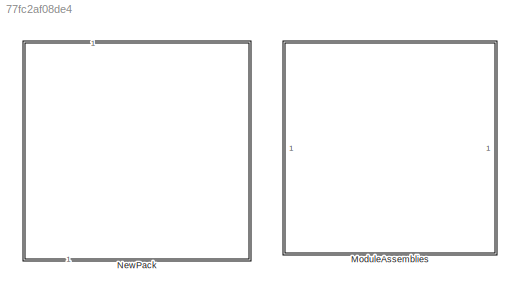
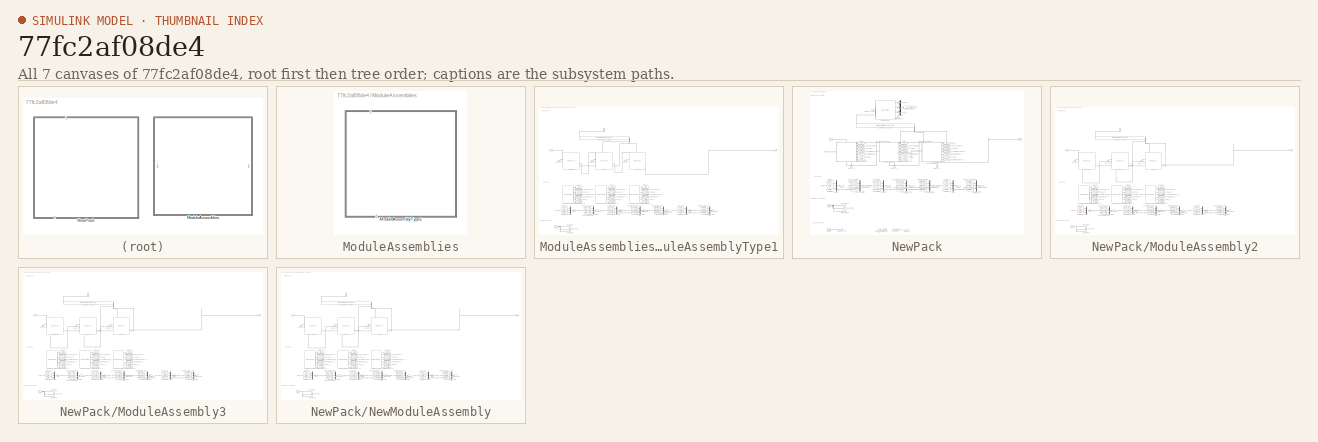
[diagram: thumbnail index - all 7 canvases of the model, root first then tree order]
MODEL slx_77fc2af08de4
KIND library
CONFIG AbsTol = auto
CONFIG EnableMultiTasking = off
CONFIG FixedStep = auto
CONFIG MaxStep = auto
CONFIG MinStep = auto
CONFIG RelTol = 1e-3
CONFIG SampleTimeConstraint = Unconstrained
CONFIG SolverName = VariableStepAuto
CONFIG StartTime = 0.0
CONFIG StopTime = 10.0
BLOCK [SubSystem] ModuleAssemblies
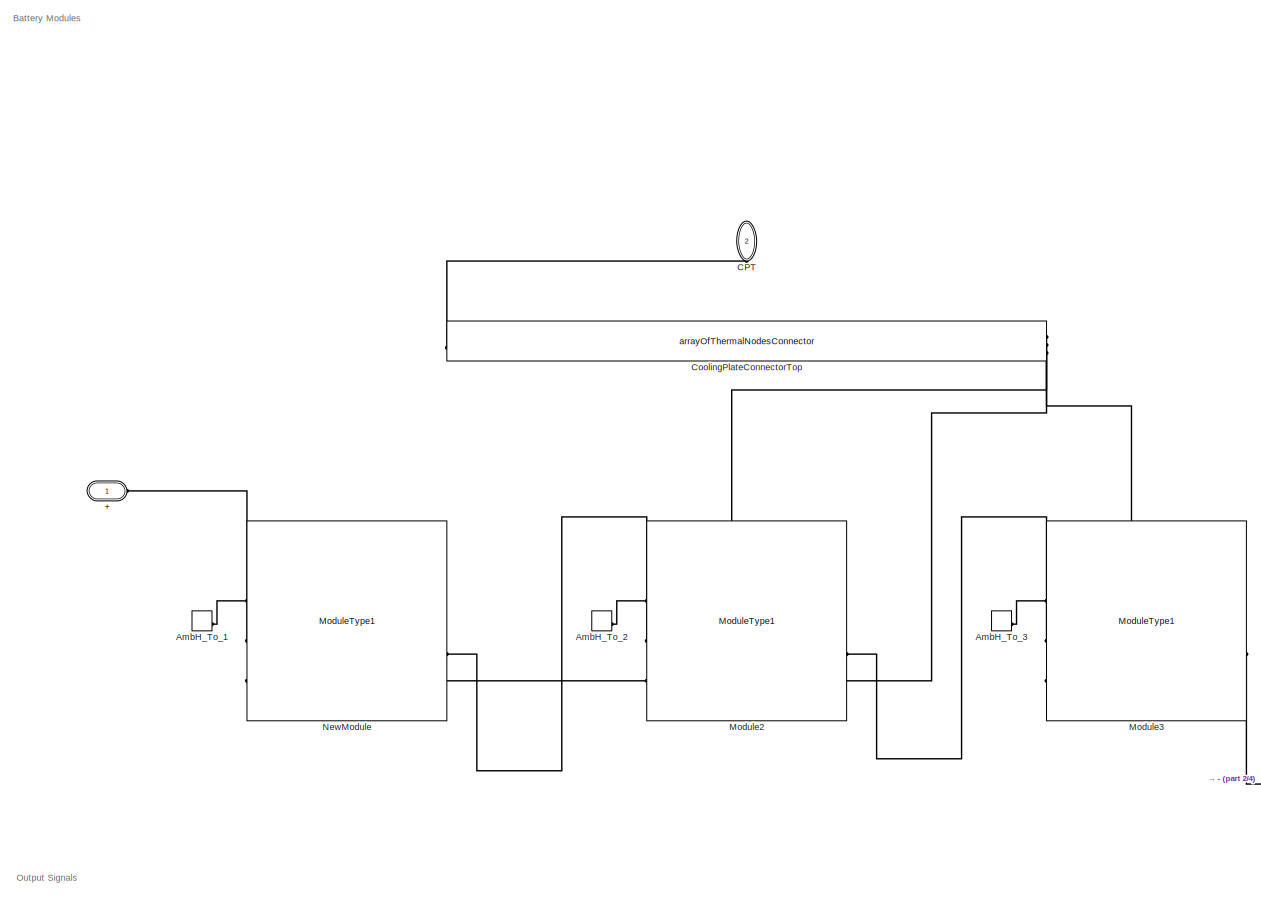
[diagram: ModuleAssemblies/ModuleAssemblyType1 - part 1/4, top left region]
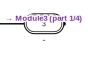
[diagram: ModuleAssemblies/ModuleAssemblyType1 - part 2/4, middle right region]
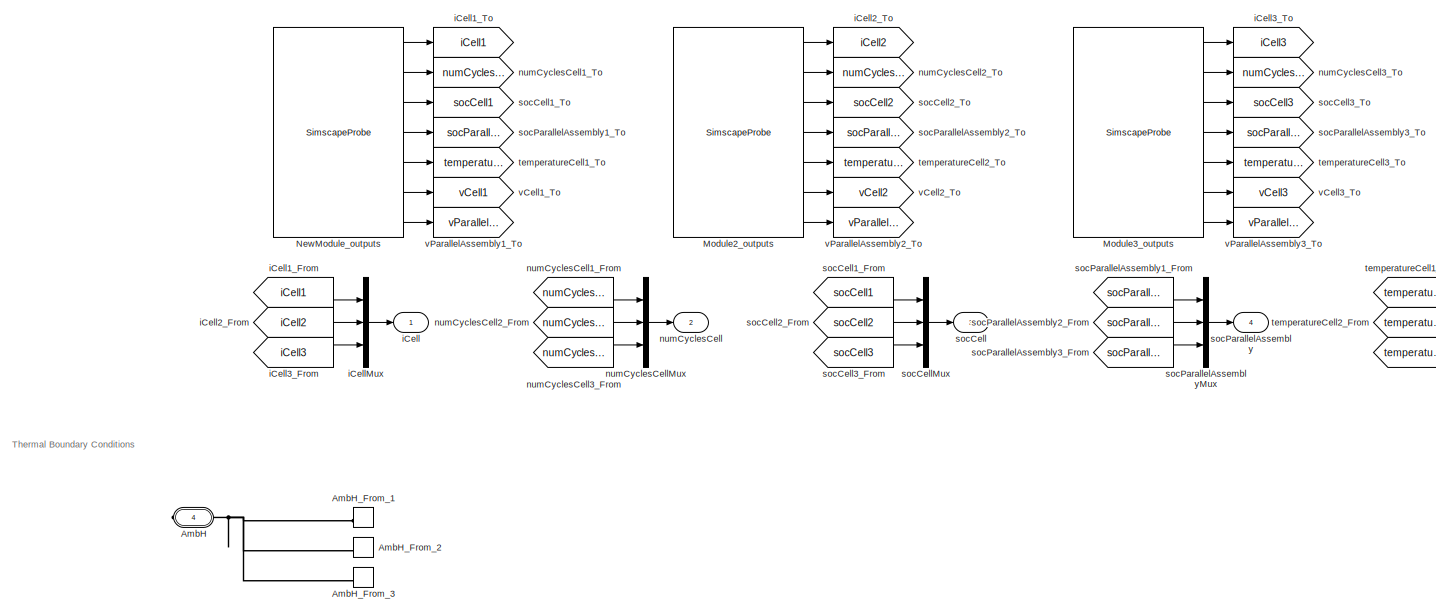
[diagram: ModuleAssemblies/ModuleAssemblyType1 - part 3/4, bottom left region]
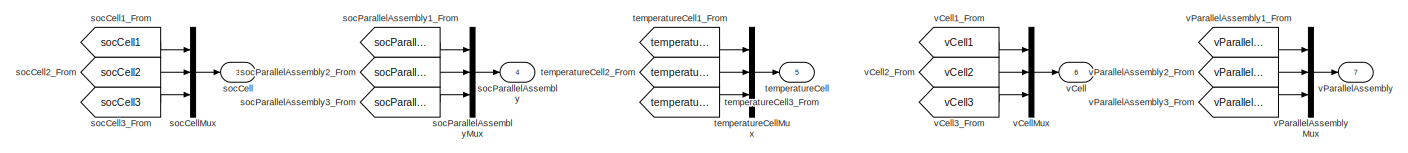
[diagram: ModuleAssemblies/ModuleAssemblyType1 - part 4/4, bottom center region]
BLOCK [SubSystem] ModuleAssemblies/ModuleAssemblyType1
  CopyFcn = battery_builder_rtmsupport('copyfcn',gcbh);
  LoadFcn = battery_builder_rtmsupport('loadfcn',gcbh);
  PortSchema = {"entries":[{"content":{"sides":[{"content":{"connectorIds":["LConn1","LConn2"]},"type":"ConnectorPlacement.EquallySpacedRectSide","uuid":"da2bc8cd-39b5-45b9-b67a-9219af8a2409"},{"content":{"connectorIds":["RConn1","RConn2"],"side":"RIGHT"},"type":"ConnectorPlacement.EquallySpacedRectSide","uuid":"eae05177-74bb-473b-9faf-ca0f729340be"},{"content":{"side":"TOP"},"type":"ConnectorPlacement.EquallySp...<+437ch>  <repeated x4 — deduplicated; at blocks: ModuleAssemblyType1, ModuleAssembly2, ModuleAssembly3, NewModuleAssembly>
  PreCopyFcn = battery_builder_rtmsupport('precopyfcn',gcbh);
  PreDeleteFcn = battery_builder_rtmsupport('predeletefcn',gcbh);
BLOCK [PMIOPort] ModuleAssemblies/ModuleAssemblyType1/+
  Side = Left
BLOCK [PMIOPort] ModuleAssemblies/ModuleAssemblyType1/-
  Port = 3
  Side = Right
BLOCK [PMIOPort] ModuleAssemblies/ModuleAssemblyType1/AmbH
  ConnectionType = Connection: foundation.thermal.thermal
  Port = 4
  Side = Right
BLOCK [ConnectionLabel] ModuleAssemblies/ModuleAssemblyType1/AmbH_From_1
  Label = ambH_1
BLOCK [ConnectionLabel] ModuleAssemblies/ModuleAssemblyType1/AmbH_From_2
  Label = ambH_2
BLOCK [ConnectionLabel] ModuleAssemblies/ModuleAssemblyType1/AmbH_From_3
  Label = ambH_3
BLOCK [ConnectionLabel] ModuleAssemblies/ModuleAssemblyType1/AmbH_To_1
  Label = ambH_1
BLOCK [ConnectionLabel] ModuleAssemblies/ModuleAssemblyType1/AmbH_To_2
  Label = ambH_2
BLOCK [ConnectionLabel] ModuleAssemblies/ModuleAssemblyType1/AmbH_To_3
  Label = ambH_3
BLOCK [PMIOPort] ModuleAssemblies/ModuleAssemblyType1/CPT
  ConnectionType = Connection: foundation.thermal.thermal
  NameLocation = right
  Port = 2
  Side = Left
BLOCK [Reference] ModuleAssemblies/ModuleAssemblyType1/CoolingPlateConnectorTop  REF=batt_lib/Thermal/arrayOfThermalNodesConnector
  SourceBlock = batt_lib/Thermal/arrayOfThermalNodesConnector
  SourceType = arrayOfThermalNodesConnector
BLOCK [Reference] ModuleAssemblies/ModuleAssemblyType1/Module2  REF=Batteries_lib/Modules/ModuleType1
  SourceBlock = Batteries_lib/Modules/ModuleType1
  SourceType = ModuleType1
BLOCK [SimscapeProbe] ModuleAssemblies/ModuleAssemblyType1/Module2_outputs
  BoundBlock = 4
  Variables = {iCell, numCyclesCell, socCell, socParallelAssembly, temperatureCell, vCell, vParallelAssembly}
BLOCK [Reference] ModuleAssemblies/ModuleAssemblyType1/Module3  REF=Batteries_lib/Modules/ModuleType1
  SourceBlock = Batteries_lib/Modules/ModuleType1
  SourceType = ModuleType1
BLOCK [SimscapeProbe] ModuleAssemblies/ModuleAssemblyType1/Module3_outputs
  BoundBlock = 5
  Variables = {iCell, numCyclesCell, socCell, socParallelAssembly, temperatureCell, vCell, vParallelAssembly}
BLOCK [Reference] ModuleAssemblies/ModuleAssemblyType1/NewModule  REF=Batteries_lib/Modules/ModuleType1
  SourceBlock = Batteries_lib/Modules/ModuleType1
  SourceType = ModuleType1
BLOCK [SimscapeProbe] ModuleAssemblies/ModuleAssemblyType1/NewModule_outputs
  BoundBlock = 3
  Variables = {iCell, numCyclesCell, socCell, socParallelAssembly, temperatureCell, vCell, vParallelAssembly}
BLOCK [Outport] ModuleAssemblies/ModuleAssemblyType1/iCell
BLOCK [From] ModuleAssemblies/ModuleAssemblyType1/iCell1_From
  GotoTag = iCell1
BLOCK [Goto] ModuleAssemblies/ModuleAssemblyType1/iCell1_To
  GotoTag = iCell1
BLOCK [From] ModuleAssemblies/ModuleAssemblyType1/iCell2_From
  GotoTag = iCell2
BLOCK [Goto] ModuleAssemblies/ModuleAssemblyType1/iCell2_To
  GotoTag = iCell2
BLOCK [From] ModuleAssemblies/ModuleAssemblyType1/iCell3_From
  GotoTag = iCell3
BLOCK [Goto] ModuleAssemblies/ModuleAssemblyType1/iCell3_To
  GotoTag = iCell3
BLOCK [Mux] ModuleAssemblies/ModuleAssemblyType1/iCellMux
  DisplayOption = bar
  Inputs = 3
BLOCK [Outport] ModuleAssemblies/ModuleAssemblyType1/numCyclesCell
  Port = 2
BLOCK [From] ModuleAssemblies/ModuleAssemblyType1/numCyclesCell1_From
  GotoTag = numCyclesCell1
BLOCK [Goto] ModuleAssemblies/ModuleAssemblyType1/numCyclesCell1_To
  GotoTag = numCyclesCell1
BLOCK [From] ModuleAssemblies/ModuleAssemblyType1/numCyclesCell2_From
  GotoTag = numCyclesCell2
BLOCK [Goto] ModuleAssemblies/ModuleAssemblyType1/numCyclesCell2_To
  GotoTag = numCyclesCell2
BLOCK [From] ModuleAssemblies/ModuleAssemblyType1/numCyclesCell3_From
  GotoTag = numCyclesCell3
BLOCK [Goto] ModuleAssemblies/ModuleAssemblyType1/numCyclesCell3_To
  GotoTag = numCyclesCell3
BLOCK [Mux] ModuleAssemblies/ModuleAssemblyType1/numCyclesCellMux
  DisplayOption = bar
  Inputs = 3
BLOCK [Outport] ModuleAssemblies/ModuleAssemblyType1/socCell
  Port = 3
BLOCK [From] ModuleAssemblies/ModuleAssemblyType1/socCell1_From
  GotoTag = socCell1
BLOCK [Goto] ModuleAssemblies/ModuleAssemblyType1/socCell1_To
  GotoTag = socCell1
BLOCK [From] ModuleAssemblies/ModuleAssemblyType1/socCell2_From
  GotoTag = socCell2
BLOCK [Goto] ModuleAssemblies/ModuleAssemblyType1/socCell2_To
  GotoTag = socCell2
BLOCK [From] ModuleAssemblies/ModuleAssemblyType1/socCell3_From
  GotoTag = socCell3
BLOCK [Goto] ModuleAssemblies/ModuleAssemblyType1/socCell3_To
  GotoTag = socCell3
BLOCK [Mux] ModuleAssemblies/ModuleAssemblyType1/socCellMux
  DisplayOption = bar
  Inputs = 3
BLOCK [Outport] ModuleAssemblies/ModuleAssemblyType1/socParallelAssembly
  Port = 4
BLOCK [From] ModuleAssemblies/ModuleAssemblyType1/socParallelAssembly1_From
  GotoTag = socParallelAssembly1
BLOCK [Goto] ModuleAssemblies/ModuleAssemblyType1/socParallelAssembly1_To
  GotoTag = socParallelAssembly1
BLOCK [From] ModuleAssemblies/ModuleAssemblyType1/socParallelAssembly2_From
  GotoTag = socParallelAssembly2
BLOCK [Goto] ModuleAssemblies/ModuleAssemblyType1/socParallelAssembly2_To
  GotoTag = socParallelAssembly2
BLOCK [From] ModuleAssemblies/ModuleAssemblyType1/socParallelAssembly3_From
  GotoTag = socParallelAssembly3
BLOCK [Goto] ModuleAssemblies/ModuleAssemblyType1/socParallelAssembly3_To
  GotoTag = socParallelAssembly3
BLOCK [Mux] ModuleAssemblies/ModuleAssemblyType1/socParallelAssemblyMux
  DisplayOption = bar
  Inputs = 3
BLOCK [Outport] ModuleAssemblies/ModuleAssemblyType1/temperatureCell
  Port = 5
BLOCK [From] ModuleAssemblies/ModuleAssemblyType1/temperatureCell1_From
  GotoTag = temperatureCell1
BLOCK [Goto] ModuleAssemblies/ModuleAssemblyType1/temperatureCell1_To
  GotoTag = temperatureCell1
BLOCK [From] ModuleAssemblies/ModuleAssemblyType1/temperatureCell2_From
  GotoTag = temperatureCell2
BLOCK [Goto] ModuleAssemblies/ModuleAssemblyType1/temperatureCell2_To
  GotoTag = temperatureCell2
BLOCK [From] ModuleAssemblies/ModuleAssemblyType1/temperatureCell3_From
  GotoTag = temperatureCell3
BLOCK [Goto] ModuleAssemblies/ModuleAssemblyType1/temperatureCell3_To
  GotoTag = temperatureCell3
BLOCK [Mux] ModuleAssemblies/ModuleAssemblyType1/temperatureCellMux
  DisplayOption = bar
  Inputs = 3
BLOCK [Outport] ModuleAssemblies/ModuleAssemblyType1/vCell
  Port = 6
BLOCK [From] ModuleAssemblies/ModuleAssemblyType1/vCell1_From
  GotoTag = vCell1
BLOCK [Goto] ModuleAssemblies/ModuleAssemblyType1/vCell1_To
  GotoTag = vCell1
BLOCK [From] ModuleAssemblies/ModuleAssemblyType1/vCell2_From
  GotoTag = vCell2
BLOCK [Goto] ModuleAssemblies/ModuleAssemblyType1/vCell2_To
  GotoTag = vCell2
BLOCK [From] ModuleAssemblies/ModuleAssemblyType1/vCell3_From
  GotoTag = vCell3
BLOCK [Goto] ModuleAssemblies/ModuleAssemblyType1/vCell3_To
  GotoTag = vCell3
BLOCK [Mux] ModuleAssemblies/ModuleAssemblyType1/vCellMux
  DisplayOption = bar
  Inputs = 3
BLOCK [Outport] ModuleAssemblies/ModuleAssemblyType1/vParallelAssembly
  Port = 7
BLOCK [From] ModuleAssemblies/ModuleAssemblyType1/vParallelAssembly1_From
  GotoTag = vParallelAssembly1
BLOCK [Goto] ModuleAssemblies/ModuleAssemblyType1/vParallelAssembly1_To
  GotoTag = vParallelAssembly1
BLOCK [From] ModuleAssemblies/ModuleAssemblyType1/vParallelAssembly2_From
  GotoTag = vParallelAssembly2
BLOCK [Goto] ModuleAssemblies/ModuleAssemblyType1/vParallelAssembly2_To
  GotoTag = vParallelAssembly2
BLOCK [From] ModuleAssemblies/ModuleAssemblyType1/vParallelAssembly3_From
  GotoTag = vParallelAssembly3
BLOCK [Goto] ModuleAssemblies/ModuleAssemblyType1/vParallelAssembly3_To
  GotoTag = vParallelAssembly3
BLOCK [Mux] ModuleAssemblies/ModuleAssemblyType1/vParallelAssemblyMux
  DisplayOption = bar
  Inputs = 3
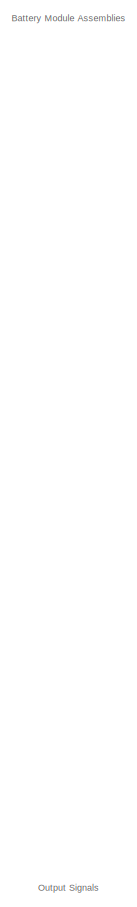
[diagram: NewPack - part 1/5, top left region]
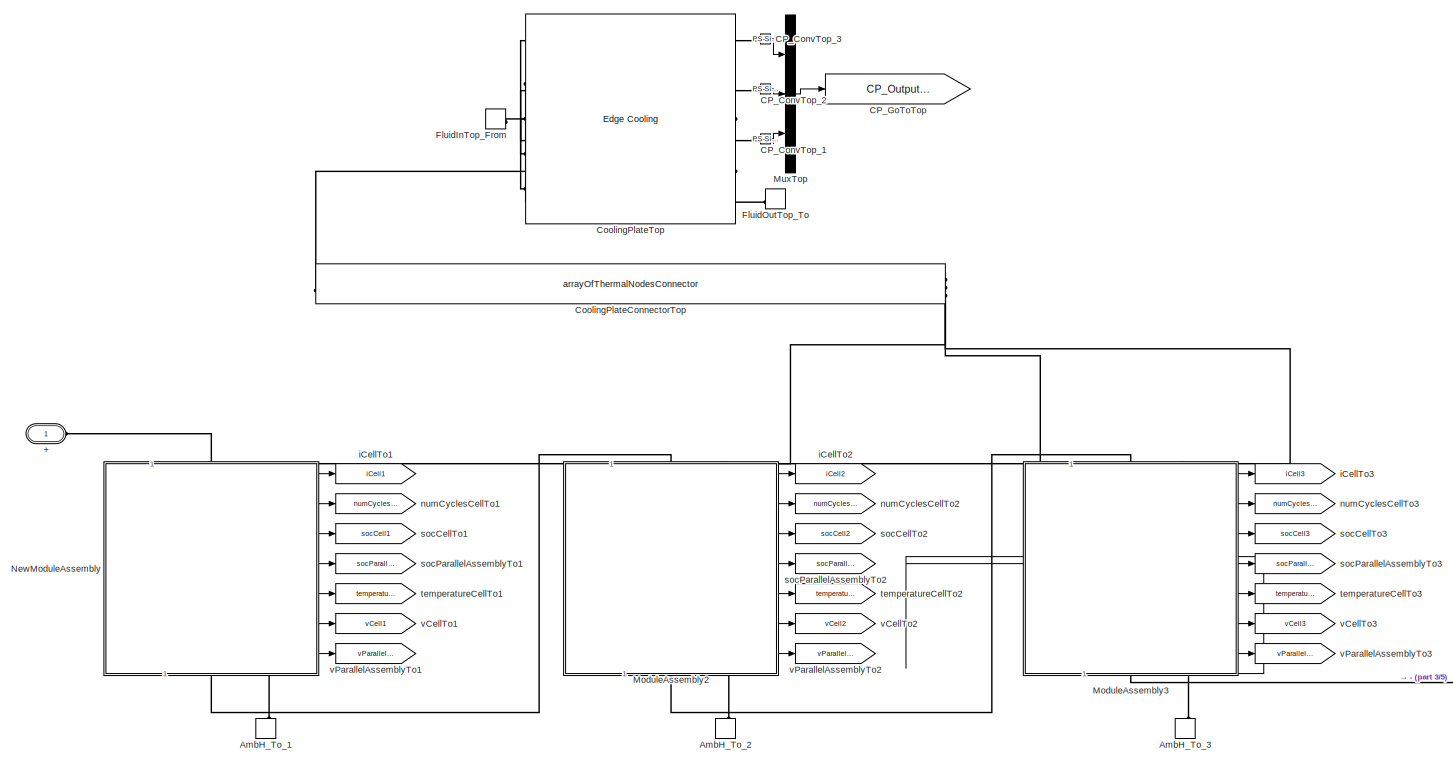
[diagram: NewPack - part 2/5, top center region]
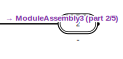
[diagram: NewPack - part 3/5, middle right region]
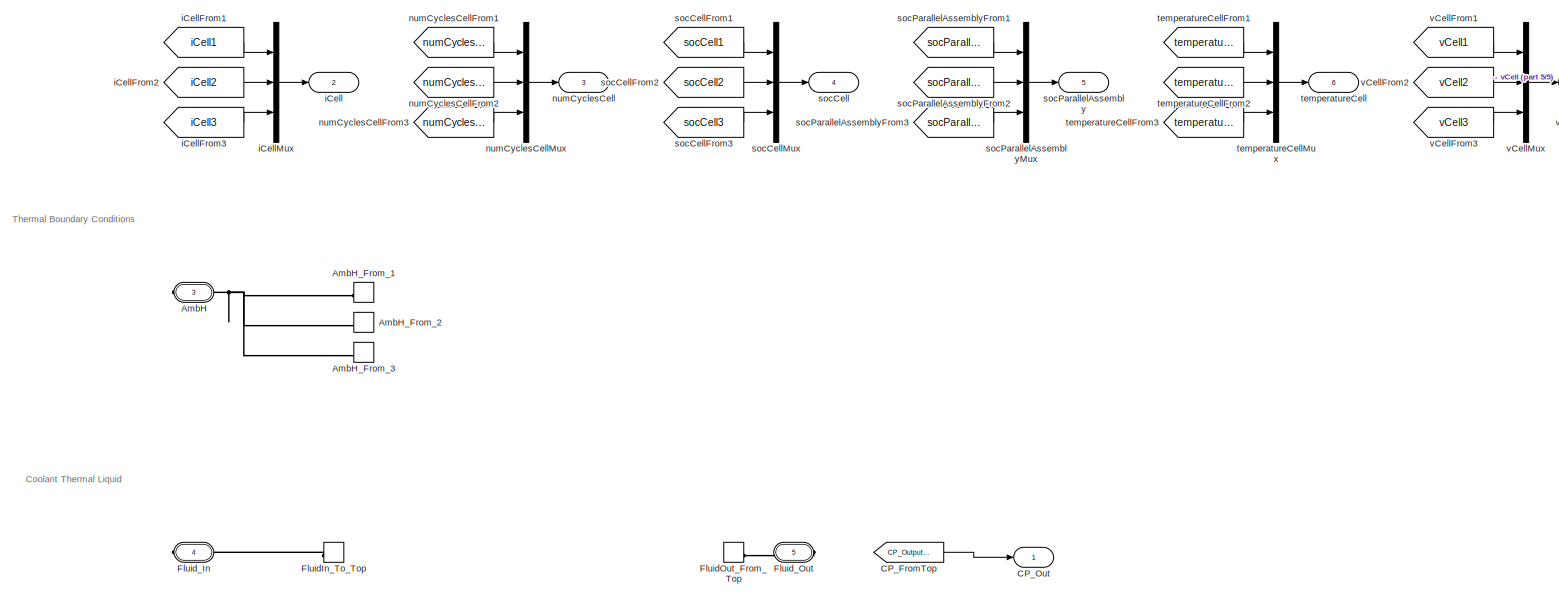
[diagram: NewPack - part 4/5, bottom center region]
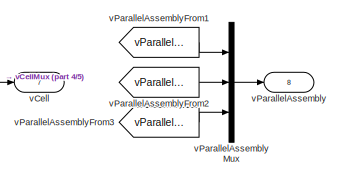
[diagram: NewPack - part 5/5, middle right region]
BLOCK [SubSystem] NewPack
  CopyFcn = battery_builder_rtmsupport('copyfcn',gcbh);
  LoadFcn = battery_builder_rtmsupport('loadfcn',gcbh);
  PortSchema = {"entries":[{"content":{"sides":[{"content":{"connectorIds":["LConn1"]},"type":"ConnectorPlacement.EquallySpacedRectSide","uuid":"3ae04127-e550-45c8-b229-37355d828265"},{"content":{"connectorIds":["Out1","RConn1","RConn2","RConn3","RConn4"],"side":"RIGHT"},"type":"ConnectorPlacement.EquallySpacedRectSide","uuid":"b2d5cc9b-e454-4ef0-a57d-b79f191f544c"},{"content":{"side":"TOP"},"type":"ConnectorPla...<+453ch>
  PreCopyFcn = battery_builder_rtmsupport('precopyfcn',gcbh);
  PreDeleteFcn = battery_builder_rtmsupport('predeletefcn',gcbh);
BLOCK [PMIOPort] NewPack/+
  Side = Left
BLOCK [PMIOPort] NewPack/-
  Port = 2
  Side = Right
BLOCK [PMIOPort] NewPack/AmbH
  ConnectionType = Connection: foundation.thermal.thermal
  Port = 3
  Side = Right
BLOCK [ConnectionLabel] NewPack/AmbH_From_1
  Label = ambH_1
BLOCK [ConnectionLabel] NewPack/AmbH_From_2
  Label = ambH_2
BLOCK [ConnectionLabel] NewPack/AmbH_From_3
  Label = ambH_3
BLOCK [ConnectionLabel] NewPack/AmbH_To_1
  Label = ambH_1
  NameLocation = right
BLOCK [ConnectionLabel] NewPack/AmbH_To_2
  Label = ambH_2
  NameLocation = right
BLOCK [ConnectionLabel] NewPack/AmbH_To_3
  Label = ambH_3
  NameLocation = right
BLOCK [Reference] NewPack/CP_ConvTop_1  REF=nesl_utility/PS-Simulink
Converter
  SourceBlock = nesl_utility/PS-Simulink\nConverter
  SourceType = PS-Simulink\nConverter
BLOCK [Reference] NewPack/CP_ConvTop_2  REF=nesl_utility/PS-Simulink
Converter
  SourceBlock = nesl_utility/PS-Simulink\nConverter
  SourceType = PS-Simulink\nConverter
BLOCK [Reference] NewPack/CP_ConvTop_3  REF=nesl_utility/PS-Simulink
Converter
  SourceBlock = nesl_utility/PS-Simulink\nConverter
  SourceType = PS-Simulink\nConverter
BLOCK [From] NewPack/CP_FromTop
  GotoTag = CP_OutputsTop
BLOCK [Goto] NewPack/CP_GoToTop
  GotoTag = CP_OutputsTop
BLOCK [Outport] NewPack/CP_Out
BLOCK [Reference] NewPack/CoolingPlateConnectorTop  REF=batt_lib/Thermal/arrayOfThermalNodesConnector
  SourceBlock = batt_lib/Thermal/arrayOfThermalNodesConnector
  SourceType = arrayOfThermalNodesConnector
BLOCK [Reference] NewPack/CoolingPlateTop  REF=batt_lib/Thermal/Edge Cooling
  SourceBlock = batt_lib/Thermal/Edge Cooling
  SourceType = Edge Cooling
BLOCK [ConnectionLabel] NewPack/FluidInTop_From
  Label = FluidIn_To_Top
BLOCK [ConnectionLabel] NewPack/FluidIn_To_Top
  Label = FluidIn_To_Top
BLOCK [ConnectionLabel] NewPack/FluidOutTop_To
  Label = FluidOut_From_Top
BLOCK [ConnectionLabel] NewPack/FluidOut_From_Top
  Label = FluidOut_From_Top
BLOCK [PMIOPort] NewPack/Fluid_In
  ConnectionType = Connection: foundation.thermal_liquid.thermal_liquid
  Port = 4
  Side = Right
BLOCK [PMIOPort] NewPack/Fluid_Out
  ConnectionType = Connection: foundation.thermal_liquid.thermal_liquid
  Port = 5
  Side = Right
BLOCK [SubSystem] NewPack/ModuleAssembly2
  CopyFcn = battery_builder_rtmsupport('copyfcn',gcbh);
  LoadFcn = battery_builder_rtmsupport('loadfcn',gcbh);
  PreCopyFcn = battery_builder_rtmsupport('precopyfcn',gcbh);
  PreDeleteFcn = battery_builder_rtmsupport('predeletefcn',gcbh);
BLOCK [PMIOPort] NewPack/ModuleAssembly2/+
  Side = Left
BLOCK [PMIOPort] NewPack/ModuleAssembly2/-
  Port = 3
  Side = Right
BLOCK [PMIOPort] NewPack/ModuleAssembly2/AmbH
  ConnectionType = Connection: foundation.thermal.thermal
  Port = 4
  Side = Right
BLOCK [ConnectionLabel] NewPack/ModuleAssembly2/AmbH_From_1
  Label = ambH_1
BLOCK [ConnectionLabel] NewPack/ModuleAssembly2/AmbH_From_2
  Label = ambH_2
BLOCK [ConnectionLabel] NewPack/ModuleAssembly2/AmbH_From_3
  Label = ambH_3
BLOCK [ConnectionLabel] NewPack/ModuleAssembly2/AmbH_To_1
  Label = ambH_1
BLOCK [ConnectionLabel] NewPack/ModuleAssembly2/AmbH_To_2
  Label = ambH_2
BLOCK [ConnectionLabel] NewPack/ModuleAssembly2/AmbH_To_3
  Label = ambH_3
BLOCK [PMIOPort] NewPack/ModuleAssembly2/CPT
  ConnectionType = Connection: foundation.thermal.thermal
  NameLocation = right
  Port = 2
  Side = Left
BLOCK [Reference] NewPack/ModuleAssembly2/CoolingPlateConnectorTop  REF=batt_lib/Thermal/arrayOfThermalNodesConnector
  SourceBlock = batt_lib/Thermal/arrayOfThermalNodesConnector
  SourceType = arrayOfThermalNodesConnector
BLOCK [Reference] NewPack/ModuleAssembly2/Module2  REF=Batteries_lib/Modules/ModuleType1
  SourceBlock = Batteries_lib/Modules/ModuleType1
  SourceType = ModuleType1
BLOCK [SimscapeProbe] NewPack/ModuleAssembly2/Module2_outputs
  BoundBlock = 165
  Variables = {iCell, numCyclesCell, socCell, socParallelAssembly, temperatureCell, vCell, vParallelAssembly}
BLOCK [Reference] NewPack/ModuleAssembly2/Module3  REF=Batteries_lib/Modules/ModuleType1
  SourceBlock = Batteries_lib/Modules/ModuleType1
  SourceType = ModuleType1
BLOCK [SimscapeProbe] NewPack/ModuleAssembly2/Module3_outputs
  BoundBlock = 167
  Variables = {iCell, numCyclesCell, socCell, socParallelAssembly, temperatureCell, vCell, vParallelAssembly}
BLOCK [Reference] NewPack/ModuleAssembly2/NewModule  REF=Batteries_lib/Modules/ModuleType1
  SourceBlock = Batteries_lib/Modules/ModuleType1
  SourceType = ModuleType1
BLOCK [SimscapeProbe] NewPack/ModuleAssembly2/NewModule_outputs
  BoundBlock = 169
  Variables = {iCell, numCyclesCell, socCell, socParallelAssembly, temperatureCell, vCell, vParallelAssembly}
BLOCK [Outport] NewPack/ModuleAssembly2/iCell
BLOCK [From] NewPack/ModuleAssembly2/iCell1_From
  GotoTag = iCell1
BLOCK [Goto] NewPack/ModuleAssembly2/iCell1_To
  GotoTag = iCell1
BLOCK [From] NewPack/ModuleAssembly2/iCell2_From
  GotoTag = iCell2
BLOCK [Goto] NewPack/ModuleAssembly2/iCell2_To
  GotoTag = iCell2
BLOCK [From] NewPack/ModuleAssembly2/iCell3_From
  GotoTag = iCell3
BLOCK [Goto] NewPack/ModuleAssembly2/iCell3_To
  GotoTag = iCell3
BLOCK [Mux] NewPack/ModuleAssembly2/iCellMux
  DisplayOption = bar
  Inputs = 3
BLOCK [Outport] NewPack/ModuleAssembly2/numCyclesCell
  Port = 2
BLOCK [From] NewPack/ModuleAssembly2/numCyclesCell1_From
  GotoTag = numCyclesCell1
BLOCK [Goto] NewPack/ModuleAssembly2/numCyclesCell1_To
  GotoTag = numCyclesCell1
BLOCK [From] NewPack/ModuleAssembly2/numCyclesCell2_From
  GotoTag = numCyclesCell2
BLOCK [Goto] NewPack/ModuleAssembly2/numCyclesCell2_To
  GotoTag = numCyclesCell2
BLOCK [From] NewPack/ModuleAssembly2/numCyclesCell3_From
  GotoTag = numCyclesCell3
BLOCK [Goto] NewPack/ModuleAssembly2/numCyclesCell3_To
  GotoTag = numCyclesCell3
BLOCK [Mux] NewPack/ModuleAssembly2/numCyclesCellMux
  DisplayOption = bar
  Inputs = 3
BLOCK [Outport] NewPack/ModuleAssembly2/socCell
  Port = 3
BLOCK [From] NewPack/ModuleAssembly2/socCell1_From
  GotoTag = socCell1
BLOCK [Goto] NewPack/ModuleAssembly2/socCell1_To
  GotoTag = socCell1
BLOCK [From] NewPack/ModuleAssembly2/socCell2_From
  GotoTag = socCell2
BLOCK [Goto] NewPack/ModuleAssembly2/socCell2_To
  GotoTag = socCell2
BLOCK [From] NewPack/ModuleAssembly2/socCell3_From
  GotoTag = socCell3
BLOCK [Goto] NewPack/ModuleAssembly2/socCell3_To
  GotoTag = socCell3
BLOCK [Mux] NewPack/ModuleAssembly2/socCellMux
  DisplayOption = bar
  Inputs = 3
BLOCK [Outport] NewPack/ModuleAssembly2/socParallelAssembly
  Port = 4
BLOCK [From] NewPack/ModuleAssembly2/socParallelAssembly1_From
  GotoTag = socParallelAssembly1
BLOCK [Goto] NewPack/ModuleAssembly2/socParallelAssembly1_To
  GotoTag = socParallelAssembly1
BLOCK [From] NewPack/ModuleAssembly2/socParallelAssembly2_From
  GotoTag = socParallelAssembly2
BLOCK [Goto] NewPack/ModuleAssembly2/socParallelAssembly2_To
  GotoTag = socParallelAssembly2
BLOCK [From] NewPack/ModuleAssembly2/socParallelAssembly3_From
  GotoTag = socParallelAssembly3
BLOCK [Goto] NewPack/ModuleAssembly2/socParallelAssembly3_To
  GotoTag = socParallelAssembly3
BLOCK [Mux] NewPack/ModuleAssembly2/socParallelAssemblyMux
  DisplayOption = bar
  Inputs = 3
BLOCK [Outport] NewPack/ModuleAssembly2/temperatureCell
  Port = 5
BLOCK [From] NewPack/ModuleAssembly2/temperatureCell1_From
  GotoTag = temperatureCell1
BLOCK [Goto] NewPack/ModuleAssembly2/temperatureCell1_To
  GotoTag = temperatureCell1
BLOCK [From] NewPack/ModuleAssembly2/temperatureCell2_From
  GotoTag = temperatureCell2
BLOCK [Goto] NewPack/ModuleAssembly2/temperatureCell2_To
  GotoTag = temperatureCell2
BLOCK [From] NewPack/ModuleAssembly2/temperatureCell3_From
  GotoTag = temperatureCell3
BLOCK [Goto] NewPack/ModuleAssembly2/temperatureCell3_To
  GotoTag = temperatureCell3
BLOCK [Mux] NewPack/ModuleAssembly2/temperatureCellMux
  DisplayOption = bar
  Inputs = 3
BLOCK [Outport] NewPack/ModuleAssembly2/vCell
  Port = 6
BLOCK [From] NewPack/ModuleAssembly2/vCell1_From
  GotoTag = vCell1
BLOCK [Goto] NewPack/ModuleAssembly2/vCell1_To
  GotoTag = vCell1
BLOCK [From] NewPack/ModuleAssembly2/vCell2_From
  GotoTag = vCell2
BLOCK [Goto] NewPack/ModuleAssembly2/vCell2_To
  GotoTag = vCell2
BLOCK [From] NewPack/ModuleAssembly2/vCell3_From
  GotoTag = vCell3
BLOCK [Goto] NewPack/ModuleAssembly2/vCell3_To
  GotoTag = vCell3
BLOCK [Mux] NewPack/ModuleAssembly2/vCellMux
  DisplayOption = bar
  Inputs = 3
BLOCK [Outport] NewPack/ModuleAssembly2/vParallelAssembly
  Port = 7
BLOCK [From] NewPack/ModuleAssembly2/vParallelAssembly1_From
  GotoTag = vParallelAssembly1
BLOCK [Goto] NewPack/ModuleAssembly2/vParallelAssembly1_To
  GotoTag = vParallelAssembly1
BLOCK [From] NewPack/ModuleAssembly2/vParallelAssembly2_From
  GotoTag = vParallelAssembly2
BLOCK [Goto] NewPack/ModuleAssembly2/vParallelAssembly2_To
  GotoTag = vParallelAssembly2
BLOCK [From] NewPack/ModuleAssembly2/vParallelAssembly3_From
  GotoTag = vParallelAssembly3
BLOCK [Goto] NewPack/ModuleAssembly2/vParallelAssembly3_To
  GotoTag = vParallelAssembly3
BLOCK [Mux] NewPack/ModuleAssembly2/vParallelAssemblyMux
  DisplayOption = bar
  Inputs = 3
BLOCK [SubSystem] NewPack/ModuleAssembly3
  CopyFcn = battery_builder_rtmsupport('copyfcn',gcbh);
  LoadFcn = battery_builder_rtmsupport('loadfcn',gcbh);
  PreCopyFcn = battery_builder_rtmsupport('precopyfcn',gcbh);
  PreDeleteFcn = battery_builder_rtmsupport('predeletefcn',gcbh);
BLOCK [PMIOPort] NewPack/ModuleAssembly3/+
  Side = Left
BLOCK [PMIOPort] NewPack/ModuleAssembly3/-
  Port = 3
  Side = Right
BLOCK [PMIOPort] NewPack/ModuleAssembly3/AmbH
  ConnectionType = Connection: foundation.thermal.thermal
  Port = 4
  Side = Right
BLOCK [ConnectionLabel] NewPack/ModuleAssembly3/AmbH_From_1
  Label = ambH_1
BLOCK [ConnectionLabel] NewPack/ModuleAssembly3/AmbH_From_2
  Label = ambH_2
BLOCK [ConnectionLabel] NewPack/ModuleAssembly3/AmbH_From_3
  Label = ambH_3
BLOCK [ConnectionLabel] NewPack/ModuleAssembly3/AmbH_To_1
  Label = ambH_1
BLOCK [ConnectionLabel] NewPack/ModuleAssembly3/AmbH_To_2
  Label = ambH_2
BLOCK [ConnectionLabel] NewPack/ModuleAssembly3/AmbH_To_3
  Label = ambH_3
BLOCK [PMIOPort] NewPack/ModuleAssembly3/CPT
  ConnectionType = Connection: foundation.thermal.thermal
  NameLocation = right
  Port = 2
  Side = Left
BLOCK [Reference] NewPack/ModuleAssembly3/CoolingPlateConnectorTop  REF=batt_lib/Thermal/arrayOfThermalNodesConnector
  SourceBlock = batt_lib/Thermal/arrayOfThermalNodesConnector
  SourceType = arrayOfThermalNodesConnector
BLOCK [Reference] NewPack/ModuleAssembly3/Module2  REF=Batteries_lib/Modules/ModuleType1
  SourceBlock = Batteries_lib/Modules/ModuleType1
  SourceType = ModuleType1
BLOCK [SimscapeProbe] NewPack/ModuleAssembly3/Module2_outputs
  BoundBlock = 242
  Variables = {iCell, numCyclesCell, socCell, socParallelAssembly, temperatureCell, vCell, vParallelAssembly}
BLOCK [Reference] NewPack/ModuleAssembly3/Module3  REF=Batteries_lib/Modules/ModuleType1
  SourceBlock = Batteries_lib/Modules/ModuleType1
  SourceType = ModuleType1
BLOCK [SimscapeProbe] NewPack/ModuleAssembly3/Module3_outputs
  BoundBlock = 244
  Variables = {iCell, numCyclesCell, socCell, socParallelAssembly, temperatureCell, vCell, vParallelAssembly}
BLOCK [Reference] NewPack/ModuleAssembly3/NewModule  REF=Batteries_lib/Modules/ModuleType1
  SourceBlock = Batteries_lib/Modules/ModuleType1
  SourceType = ModuleType1
BLOCK [SimscapeProbe] NewPack/ModuleAssembly3/NewModule_outputs
  BoundBlock = 246
  Variables = {iCell, numCyclesCell, socCell, socParallelAssembly, temperatureCell, vCell, vParallelAssembly}
BLOCK [Outport] NewPack/ModuleAssembly3/iCell
BLOCK [From] NewPack/ModuleAssembly3/iCell1_From
  GotoTag = iCell1
BLOCK [Goto] NewPack/ModuleAssembly3/iCell1_To
  GotoTag = iCell1
BLOCK [From] NewPack/ModuleAssembly3/iCell2_From
  GotoTag = iCell2
BLOCK [Goto] NewPack/ModuleAssembly3/iCell2_To
  GotoTag = iCell2
BLOCK [From] NewPack/ModuleAssembly3/iCell3_From
  GotoTag = iCell3
BLOCK [Goto] NewPack/ModuleAssembly3/iCell3_To
  GotoTag = iCell3
BLOCK [Mux] NewPack/ModuleAssembly3/iCellMux
  DisplayOption = bar
  Inputs = 3
BLOCK [Outport] NewPack/ModuleAssembly3/numCyclesCell
  Port = 2
BLOCK [From] NewPack/ModuleAssembly3/numCyclesCell1_From
  GotoTag = numCyclesCell1
BLOCK [Goto] NewPack/ModuleAssembly3/numCyclesCell1_To
  GotoTag = numCyclesCell1
BLOCK [From] NewPack/ModuleAssembly3/numCyclesCell2_From
  GotoTag = numCyclesCell2
BLOCK [Goto] NewPack/ModuleAssembly3/numCyclesCell2_To
  GotoTag = numCyclesCell2
BLOCK [From] NewPack/ModuleAssembly3/numCyclesCell3_From
  GotoTag = numCyclesCell3
BLOCK [Goto] NewPack/ModuleAssembly3/numCyclesCell3_To
  GotoTag = numCyclesCell3
BLOCK [Mux] NewPack/ModuleAssembly3/numCyclesCellMux
  DisplayOption = bar
  Inputs = 3
BLOCK [Outport] NewPack/ModuleAssembly3/socCell
  Port = 3
BLOCK [From] NewPack/ModuleAssembly3/socCell1_From
  GotoTag = socCell1
BLOCK [Goto] NewPack/ModuleAssembly3/socCell1_To
  GotoTag = socCell1
BLOCK [From] NewPack/ModuleAssembly3/socCell2_From
  GotoTag = socCell2
BLOCK [Goto] NewPack/ModuleAssembly3/socCell2_To
  GotoTag = socCell2
BLOCK [From] NewPack/ModuleAssembly3/socCell3_From
  GotoTag = socCell3
BLOCK [Goto] NewPack/ModuleAssembly3/socCell3_To
  GotoTag = socCell3
BLOCK [Mux] NewPack/ModuleAssembly3/socCellMux
  DisplayOption = bar
  Inputs = 3
BLOCK [Outport] NewPack/ModuleAssembly3/socParallelAssembly
  Port = 4
BLOCK [From] NewPack/ModuleAssembly3/socParallelAssembly1_From
  GotoTag = socParallelAssembly1
BLOCK [Goto] NewPack/ModuleAssembly3/socParallelAssembly1_To
  GotoTag = socParallelAssembly1
BLOCK [From] NewPack/ModuleAssembly3/socParallelAssembly2_From
  GotoTag = socParallelAssembly2
BLOCK [Goto] NewPack/ModuleAssembly3/socParallelAssembly2_To
  GotoTag = socParallelAssembly2
BLOCK [From] NewPack/ModuleAssembly3/socParallelAssembly3_From
  GotoTag = socParallelAssembly3
BLOCK [Goto] NewPack/ModuleAssembly3/socParallelAssembly3_To
  GotoTag = socParallelAssembly3
BLOCK [Mux] NewPack/ModuleAssembly3/socParallelAssemblyMux
  DisplayOption = bar
  Inputs = 3
BLOCK [Outport] NewPack/ModuleAssembly3/temperatureCell
  Port = 5
BLOCK [From] NewPack/ModuleAssembly3/temperatureCell1_From
  GotoTag = temperatureCell1
BLOCK [Goto] NewPack/ModuleAssembly3/temperatureCell1_To
  GotoTag = temperatureCell1
BLOCK [From] NewPack/ModuleAssembly3/temperatureCell2_From
  GotoTag = temperatureCell2
BLOCK [Goto] NewPack/ModuleAssembly3/temperatureCell2_To
  GotoTag = temperatureCell2
BLOCK [From] NewPack/ModuleAssembly3/temperatureCell3_From
  GotoTag = temperatureCell3
BLOCK [Goto] NewPack/ModuleAssembly3/temperatureCell3_To
  GotoTag = temperatureCell3
BLOCK [Mux] NewPack/ModuleAssembly3/temperatureCellMux
  DisplayOption = bar
  Inputs = 3
BLOCK [Outport] NewPack/ModuleAssembly3/vCell
  Port = 6
BLOCK [From] NewPack/ModuleAssembly3/vCell1_From
  GotoTag = vCell1
BLOCK [Goto] NewPack/ModuleAssembly3/vCell1_To
  GotoTag = vCell1
BLOCK [From] NewPack/ModuleAssembly3/vCell2_From
  GotoTag = vCell2
BLOCK [Goto] NewPack/ModuleAssembly3/vCell2_To
  GotoTag = vCell2
BLOCK [From] NewPack/ModuleAssembly3/vCell3_From
  GotoTag = vCell3
BLOCK [Goto] NewPack/ModuleAssembly3/vCell3_To
  GotoTag = vCell3
BLOCK [Mux] NewPack/ModuleAssembly3/vCellMux
  DisplayOption = bar
  Inputs = 3
BLOCK [Outport] NewPack/ModuleAssembly3/vParallelAssembly
  Port = 7
BLOCK [From] NewPack/ModuleAssembly3/vParallelAssembly1_From
  GotoTag = vParallelAssembly1
BLOCK [Goto] NewPack/ModuleAssembly3/vParallelAssembly1_To
  GotoTag = vParallelAssembly1
BLOCK [From] NewPack/ModuleAssembly3/vParallelAssembly2_From
  GotoTag = vParallelAssembly2
BLOCK [Goto] NewPack/ModuleAssembly3/vParallelAssembly2_To
  GotoTag = vParallelAssembly2
BLOCK [From] NewPack/ModuleAssembly3/vParallelAssembly3_From
  GotoTag = vParallelAssembly3
BLOCK [Goto] NewPack/ModuleAssembly3/vParallelAssembly3_To
  GotoTag = vParallelAssembly3
BLOCK [Mux] NewPack/ModuleAssembly3/vParallelAssemblyMux
  DisplayOption = bar
  Inputs = 3
BLOCK [Mux] NewPack/MuxTop
  DisplayOption = bar
  Inputs = 3
BLOCK [SubSystem] NewPack/NewModuleAssembly
  CopyFcn = battery_builder_rtmsupport('copyfcn',gcbh);
  LoadFcn = battery_builder_rtmsupport('loadfcn',gcbh);
  PreCopyFcn = battery_builder_rtmsupport('precopyfcn',gcbh);
  PreDeleteFcn = battery_builder_rtmsupport('predeletefcn',gcbh);
BLOCK [PMIOPort] NewPack/NewModuleAssembly/+
  Side = Left
BLOCK [PMIOPort] NewPack/NewModuleAssembly/-
  Port = 3
  Side = Right
BLOCK [PMIOPort] NewPack/NewModuleAssembly/AmbH
  ConnectionType = Connection: foundation.thermal.thermal
  Port = 4
  Side = Right
BLOCK [ConnectionLabel] NewPack/NewModuleAssembly/AmbH_From_1
  Label = ambH_1
BLOCK [ConnectionLabel] NewPack/NewModuleAssembly/AmbH_From_2
  Label = ambH_2
BLOCK [ConnectionLabel] NewPack/NewModuleAssembly/AmbH_From_3
  Label = ambH_3
BLOCK [ConnectionLabel] NewPack/NewModuleAssembly/AmbH_To_1
  Label = ambH_1
BLOCK [ConnectionLabel] NewPack/NewModuleAssembly/AmbH_To_2
  Label = ambH_2
BLOCK [ConnectionLabel] NewPack/NewModuleAssembly/AmbH_To_3
  Label = ambH_3
BLOCK [PMIOPort] NewPack/NewModuleAssembly/CPT
  ConnectionType = Connection: foundation.thermal.thermal
  NameLocation = right
  Port = 2
  Side = Left
BLOCK [Reference] NewPack/NewModuleAssembly/CoolingPlateConnectorTop  REF=batt_lib/Thermal/arrayOfThermalNodesConnector
  SourceBlock = batt_lib/Thermal/arrayOfThermalNodesConnector
  SourceType = arrayOfThermalNodesConnector
BLOCK [Reference] NewPack/NewModuleAssembly/Module2  REF=Batteries_lib/Modules/ModuleType1
  SourceBlock = Batteries_lib/Modules/ModuleType1
  SourceType = ModuleType1
BLOCK [SimscapeProbe] NewPack/NewModuleAssembly/Module2_outputs
  BoundBlock = 88
  Variables = {iCell, numCyclesCell, socCell, socParallelAssembly, temperatureCell, vCell, vParallelAssembly}
BLOCK [Reference] NewPack/NewModuleAssembly/Module3  REF=Batteries_lib/Modules/ModuleType1
  SourceBlock = Batteries_lib/Modules/ModuleType1
  SourceType = ModuleType1
BLOCK [SimscapeProbe] NewPack/NewModuleAssembly/Module3_outputs
  BoundBlock = 90
  Variables = {iCell, numCyclesCell, socCell, socParallelAssembly, temperatureCell, vCell, vParallelAssembly}
BLOCK [Reference] NewPack/NewModuleAssembly/NewModule  REF=Batteries_lib/Modules/ModuleType1
  SourceBlock = Batteries_lib/Modules/ModuleType1
  SourceType = ModuleType1
BLOCK [SimscapeProbe] NewPack/NewModuleAssembly/NewModule_outputs
  BoundBlock = 92
  Variables = {iCell, numCyclesCell, socCell, socParallelAssembly, temperatureCell, vCell, vParallelAssembly}
BLOCK [Outport] NewPack/NewModuleAssembly/iCell
BLOCK [From] NewPack/NewModuleAssembly/iCell1_From
  GotoTag = iCell1
BLOCK [Goto] NewPack/NewModuleAssembly/iCell1_To
  GotoTag = iCell1
BLOCK [From] NewPack/NewModuleAssembly/iCell2_From
  GotoTag = iCell2
BLOCK [Goto] NewPack/NewModuleAssembly/iCell2_To
  GotoTag = iCell2
BLOCK [From] NewPack/NewModuleAssembly/iCell3_From
  GotoTag = iCell3
BLOCK [Goto] NewPack/NewModuleAssembly/iCell3_To
  GotoTag = iCell3
BLOCK [Mux] NewPack/NewModuleAssembly/iCellMux
  DisplayOption = bar
  Inputs = 3
BLOCK [Outport] NewPack/NewModuleAssembly/numCyclesCell
  Port = 2
BLOCK [From] NewPack/NewModuleAssembly/numCyclesCell1_From
  GotoTag = numCyclesCell1
BLOCK [Goto] NewPack/NewModuleAssembly/numCyclesCell1_To
  GotoTag = numCyclesCell1
BLOCK [From] NewPack/NewModuleAssembly/numCyclesCell2_From
  GotoTag = numCyclesCell2
BLOCK [Goto] NewPack/NewModuleAssembly/numCyclesCell2_To
  GotoTag = numCyclesCell2
BLOCK [From] NewPack/NewModuleAssembly/numCyclesCell3_From
  GotoTag = numCyclesCell3
BLOCK [Goto] NewPack/NewModuleAssembly/numCyclesCell3_To
  GotoTag = numCyclesCell3
BLOCK [Mux] NewPack/NewModuleAssembly/numCyclesCellMux
  DisplayOption = bar
  Inputs = 3
BLOCK [Outport] NewPack/NewModuleAssembly/socCell
  Port = 3
BLOCK [From] NewPack/NewModuleAssembly/socCell1_From
  GotoTag = socCell1
BLOCK [Goto] NewPack/NewModuleAssembly/socCell1_To
  GotoTag = socCell1
BLOCK [From] NewPack/NewModuleAssembly/socCell2_From
  GotoTag = socCell2
BLOCK [Goto] NewPack/NewModuleAssembly/socCell2_To
  GotoTag = socCell2
BLOCK [From] NewPack/NewModuleAssembly/socCell3_From
  GotoTag = socCell3
BLOCK [Goto] NewPack/NewModuleAssembly/socCell3_To
  GotoTag = socCell3
BLOCK [Mux] NewPack/NewModuleAssembly/socCellMux
  DisplayOption = bar
  Inputs = 3
BLOCK [Outport] NewPack/NewModuleAssembly/socParallelAssembly
  Port = 4
BLOCK [From] NewPack/NewModuleAssembly/socParallelAssembly1_From
  GotoTag = socParallelAssembly1
BLOCK [Goto] NewPack/NewModuleAssembly/socParallelAssembly1_To
  GotoTag = socParallelAssembly1
BLOCK [From] NewPack/NewModuleAssembly/socParallelAssembly2_From
  GotoTag = socParallelAssembly2
BLOCK [Goto] NewPack/NewModuleAssembly/socParallelAssembly2_To
  GotoTag = socParallelAssembly2
BLOCK [From] NewPack/NewModuleAssembly/socParallelAssembly3_From
  GotoTag = socParallelAssembly3
BLOCK [Goto] NewPack/NewModuleAssembly/socParallelAssembly3_To
  GotoTag = socParallelAssembly3
BLOCK [Mux] NewPack/NewModuleAssembly/socParallelAssemblyMux
  DisplayOption = bar
  Inputs = 3
BLOCK [Outport] NewPack/NewModuleAssembly/temperatureCell
  Port = 5
BLOCK [From] NewPack/NewModuleAssembly/temperatureCell1_From
  GotoTag = temperatureCell1
BLOCK [Goto] NewPack/NewModuleAssembly/temperatureCell1_To
  GotoTag = temperatureCell1
BLOCK [From] NewPack/NewModuleAssembly/temperatureCell2_From
  GotoTag = temperatureCell2
BLOCK [Goto] NewPack/NewModuleAssembly/temperatureCell2_To
  GotoTag = temperatureCell2
BLOCK [From] NewPack/NewModuleAssembly/temperatureCell3_From
  GotoTag = temperatureCell3
BLOCK [Goto] NewPack/NewModuleAssembly/temperatureCell3_To
  GotoTag = temperatureCell3
BLOCK [Mux] NewPack/NewModuleAssembly/temperatureCellMux
  DisplayOption = bar
  Inputs = 3
BLOCK [Outport] NewPack/NewModuleAssembly/vCell
  Port = 6
BLOCK [From] NewPack/NewModuleAssembly/vCell1_From
  GotoTag = vCell1
BLOCK [Goto] NewPack/NewModuleAssembly/vCell1_To
  GotoTag = vCell1
BLOCK [From] NewPack/NewModuleAssembly/vCell2_From
  GotoTag = vCell2
BLOCK [Goto] NewPack/NewModuleAssembly/vCell2_To
  GotoTag = vCell2
BLOCK [From] NewPack/NewModuleAssembly/vCell3_From
  GotoTag = vCell3
BLOCK [Goto] NewPack/NewModuleAssembly/vCell3_To
  GotoTag = vCell3
BLOCK [Mux] NewPack/NewModuleAssembly/vCellMux
  DisplayOption = bar
  Inputs = 3
BLOCK [Outport] NewPack/NewModuleAssembly/vParallelAssembly
  Port = 7
BLOCK [From] NewPack/NewModuleAssembly/vParallelAssembly1_From
  GotoTag = vParallelAssembly1
BLOCK [Goto] NewPack/NewModuleAssembly/vParallelAssembly1_To
  GotoTag = vParallelAssembly1
BLOCK [From] NewPack/NewModuleAssembly/vParallelAssembly2_From
  GotoTag = vParallelAssembly2
BLOCK [Goto] NewPack/NewModuleAssembly/vParallelAssembly2_To
  GotoTag = vParallelAssembly2
BLOCK [From] NewPack/NewModuleAssembly/vParallelAssembly3_From
  GotoTag = vParallelAssembly3
BLOCK [Goto] NewPack/NewModuleAssembly/vParallelAssembly3_To
  GotoTag = vParallelAssembly3
BLOCK [Mux] NewPack/NewModuleAssembly/vParallelAssemblyMux
  DisplayOption = bar
  Inputs = 3
BLOCK [Outport] NewPack/iCell
  Port = 2
BLOCK [From] NewPack/iCellFrom1
  GotoTag = iCell1
BLOCK [From] NewPack/iCellFrom2
  GotoTag = iCell2
BLOCK [From] NewPack/iCellFrom3
  GotoTag = iCell3
BLOCK [Mux] NewPack/iCellMux
  DisplayOption = bar
  Inputs = 3
BLOCK [Goto] NewPack/iCellTo1
  GotoTag = iCell1
BLOCK [Goto] NewPack/iCellTo2
  GotoTag = iCell2
BLOCK [Goto] NewPack/iCellTo3
  GotoTag = iCell3
BLOCK [Outport] NewPack/numCyclesCell
  Port = 3
BLOCK [From] NewPack/numCyclesCellFrom1
  GotoTag = numCyclesCell1
BLOCK [From] NewPack/numCyclesCellFrom2
  GotoTag = numCyclesCell2
BLOCK [From] NewPack/numCyclesCellFrom3
  GotoTag = numCyclesCell3
BLOCK [Mux] NewPack/numCyclesCellMux
  DisplayOption = bar
  Inputs = 3
BLOCK [Goto] NewPack/numCyclesCellTo1
  GotoTag = numCyclesCell1
BLOCK [Goto] NewPack/numCyclesCellTo2
  GotoTag = numCyclesCell2
BLOCK [Goto] NewPack/numCyclesCellTo3
  GotoTag = numCyclesCell3
BLOCK [Outport] NewPack/socCell
  Port = 4
BLOCK [From] NewPack/socCellFrom1
  GotoTag = socCell1
BLOCK [From] NewPack/socCellFrom2
  GotoTag = socCell2
BLOCK [From] NewPack/socCellFrom3
  GotoTag = socCell3
BLOCK [Mux] NewPack/socCellMux
  DisplayOption = bar
  Inputs = 3
BLOCK [Goto] NewPack/socCellTo1
  GotoTag = socCell1
BLOCK [Goto] NewPack/socCellTo2
  GotoTag = socCell2
BLOCK [Goto] NewPack/socCellTo3
  GotoTag = socCell3
BLOCK [Outport] NewPack/socParallelAssembly
  Port = 5
BLOCK [From] NewPack/socParallelAssemblyFrom1
  GotoTag = socParallelAssembly1
BLOCK [From] NewPack/socParallelAssemblyFrom2
  GotoTag = socParallelAssembly2
BLOCK [From] NewPack/socParallelAssemblyFrom3
  GotoTag = socParallelAssembly3
BLOCK [Mux] NewPack/socParallelAssemblyMux
  DisplayOption = bar
  Inputs = 3
BLOCK [Goto] NewPack/socParallelAssemblyTo1
  GotoTag = socParallelAssembly1
BLOCK [Goto] NewPack/socParallelAssemblyTo2
  GotoTag = socParallelAssembly2
BLOCK [Goto] NewPack/socParallelAssemblyTo3
  GotoTag = socParallelAssembly3
BLOCK [Outport] NewPack/temperatureCell
  Port = 6
BLOCK [From] NewPack/temperatureCellFrom1
  GotoTag = temperatureCell1
BLOCK [From] NewPack/temperatureCellFrom2
  GotoTag = temperatureCell2
BLOCK [From] NewPack/temperatureCellFrom3
  GotoTag = temperatureCell3
BLOCK [Mux] NewPack/temperatureCellMux
  DisplayOption = bar
  Inputs = 3
BLOCK [Goto] NewPack/temperatureCellTo1
  GotoTag = temperatureCell1
BLOCK [Goto] NewPack/temperatureCellTo2
  GotoTag = temperatureCell2
BLOCK [Goto] NewPack/temperatureCellTo3
  GotoTag = temperatureCell3
BLOCK [Outport] NewPack/vCell
  Port = 7
BLOCK [From] NewPack/vCellFrom1
  GotoTag = vCell1
BLOCK [From] NewPack/vCellFrom2
  GotoTag = vCell2
BLOCK [From] NewPack/vCellFrom3
  GotoTag = vCell3
BLOCK [Mux] NewPack/vCellMux
  DisplayOption = bar
  Inputs = 3
BLOCK [Goto] NewPack/vCellTo1
  GotoTag = vCell1
BLOCK [Goto] NewPack/vCellTo2
  GotoTag = vCell2
BLOCK [Goto] NewPack/vCellTo3
  GotoTag = vCell3
BLOCK [Outport] NewPack/vParallelAssembly
  Port = 8
BLOCK [From] NewPack/vParallelAssemblyFrom1
  GotoTag = vParallelAssembly1
BLOCK [From] NewPack/vParallelAssemblyFrom2
  GotoTag = vParallelAssembly2
BLOCK [From] NewPack/vParallelAssemblyFrom3
  GotoTag = vParallelAssembly3
BLOCK [Mux] NewPack/vParallelAssemblyMux
  DisplayOption = bar
  Inputs = 3
BLOCK [Goto] NewPack/vParallelAssemblyTo1
  GotoTag = vParallelAssembly1
BLOCK [Goto] NewPack/vParallelAssemblyTo2
  GotoTag = vParallelAssembly2
BLOCK [Goto] NewPack/vParallelAssemblyTo3
  GotoTag = vParallelAssembly3
ANNOTATION ModuleAssemblies/ModuleAssemblyType1: Battery Modules
ANNOTATION ModuleAssemblies/ModuleAssemblyType1: Output Signals
ANNOTATION ModuleAssemblies/ModuleAssemblyType1: Thermal Boundary Conditions
ANNOTATION NewPack: Battery Module Assemblies
ANNOTATION NewPack: Coolant Thermal Liquid
ANNOTATION NewPack: Output Signals
ANNOTATION NewPack: Thermal Boundary Conditions
ANNOTATION NewPack/ModuleAssembly2: Battery Modules
ANNOTATION NewPack/ModuleAssembly2: Output Signals
ANNOTATION NewPack/ModuleAssembly2: Thermal Boundary Conditions
ANNOTATION NewPack/ModuleAssembly3: Battery Modules
ANNOTATION NewPack/ModuleAssembly3: Output Signals
ANNOTATION NewPack/ModuleAssembly3: Thermal Boundary Conditions
ANNOTATION NewPack/NewModuleAssembly: Battery Modules
ANNOTATION NewPack/NewModuleAssembly: Output Signals
ANNOTATION NewPack/NewModuleAssembly: Thermal Boundary Conditions
LINE ModuleAssemblies/ModuleAssemblyType1/Module2_outputs:1 -> ModuleAssemblies/ModuleAssemblyType1/iCell2_To:1
LINE ModuleAssemblies/ModuleAssemblyType1/Module2_outputs:2 -> ModuleAssemblies/ModuleAssemblyType1/numCyclesCell2_To:1
LINE ModuleAssemblies/ModuleAssemblyType1/Module2_outputs:3 -> ModuleAssemblies/ModuleAssemblyType1/socCell2_To:1
LINE ModuleAssemblies/ModuleAssemblyType1/Module2_outputs:4 -> ModuleAssemblies/ModuleAssemblyType1/socParallelAssembly2_To:1
LINE ModuleAssemblies/ModuleAssemblyType1/Module2_outputs:5 -> ModuleAssemblies/ModuleAssemblyType1/temperatureCell2_To:1
LINE ModuleAssemblies/ModuleAssemblyType1/Module2_outputs:6 -> ModuleAssemblies/ModuleAssemblyType1/vCell2_To:1
LINE ModuleAssemblies/ModuleAssemblyType1/Module2_outputs:7 -> ModuleAssemblies/ModuleAssemblyType1/vParallelAssembly2_To:1
LINE ModuleAssemblies/ModuleAssemblyType1/Module3_outputs:1 -> ModuleAssemblies/ModuleAssemblyType1/iCell3_To:1
LINE ModuleAssemblies/ModuleAssemblyType1/Module3_outputs:2 -> ModuleAssemblies/ModuleAssemblyType1/numCyclesCell3_To:1
LINE ModuleAssemblies/ModuleAssemblyType1/Module3_outputs:3 -> ModuleAssemblies/ModuleAssemblyType1/socCell3_To:1
LINE ModuleAssemblies/ModuleAssemblyType1/Module3_outputs:4 -> ModuleAssemblies/ModuleAssemblyType1/socParallelAssembly3_To:1
LINE ModuleAssemblies/ModuleAssemblyType1/Module3_outputs:5 -> ModuleAssemblies/ModuleAssemblyType1/temperatureCell3_To:1
LINE ModuleAssemblies/ModuleAssemblyType1/Module3_outputs:6 -> ModuleAssemblies/ModuleAssemblyType1/vCell3_To:1
LINE ModuleAssemblies/ModuleAssemblyType1/Module3_outputs:7 -> ModuleAssemblies/ModuleAssemblyType1/vParallelAssembly3_To:1
LINE ModuleAssemblies/ModuleAssemblyType1/NewModule_outputs:1 -> ModuleAssemblies/ModuleAssemblyType1/iCell1_To:1
LINE ModuleAssemblies/ModuleAssemblyType1/NewModule_outputs:2 -> ModuleAssemblies/ModuleAssemblyType1/numCyclesCell1_To:1
LINE ModuleAssemblies/ModuleAssemblyType1/NewModule_outputs:3 -> ModuleAssemblies/ModuleAssemblyType1/socCell1_To:1
LINE ModuleAssemblies/ModuleAssemblyType1/NewModule_outputs:4 -> ModuleAssemblies/ModuleAssemblyType1/socParallelAssembly1_To:1
LINE ModuleAssemblies/ModuleAssemblyType1/NewModule_outputs:5 -> ModuleAssemblies/ModuleAssemblyType1/temperatureCell1_To:1
LINE ModuleAssemblies/ModuleAssemblyType1/NewModule_outputs:6 -> ModuleAssemblies/ModuleAssemblyType1/vCell1_To:1
LINE ModuleAssemblies/ModuleAssemblyType1/NewModule_outputs:7 -> ModuleAssemblies/ModuleAssemblyType1/vParallelAssembly1_To:1
LINE ModuleAssemblies/ModuleAssemblyType1/iCell1_From:1 -> ModuleAssemblies/ModuleAssemblyType1/iCellMux:1
LINE ModuleAssemblies/ModuleAssemblyType1/iCell2_From:1 -> ModuleAssemblies/ModuleAssemblyType1/iCellMux:2
LINE ModuleAssemblies/ModuleAssemblyType1/iCell3_From:1 -> ModuleAssemblies/ModuleAssemblyType1/iCellMux:3
LINE ModuleAssemblies/ModuleAssemblyType1/iCellMux:1 -> ModuleAssemblies/ModuleAssemblyType1/iCell:1
LINE ModuleAssemblies/ModuleAssemblyType1/numCyclesCell1_From:1 -> ModuleAssemblies/ModuleAssemblyType1/numCyclesCellMux:1
LINE ModuleAssemblies/ModuleAssemblyType1/numCyclesCell2_From:1 -> ModuleAssemblies/ModuleAssemblyType1/numCyclesCellMux:2
LINE ModuleAssemblies/ModuleAssemblyType1/numCyclesCell3_From:1 -> ModuleAssemblies/ModuleAssemblyType1/numCyclesCellMux:3
LINE ModuleAssemblies/ModuleAssemblyType1/numCyclesCellMux:1 -> ModuleAssemblies/ModuleAssemblyType1/numCyclesCell:1
LINE ModuleAssemblies/ModuleAssemblyType1/socCell1_From:1 -> ModuleAssemblies/ModuleAssemblyType1/socCellMux:1
LINE ModuleAssemblies/ModuleAssemblyType1/socCell2_From:1 -> ModuleAssemblies/ModuleAssemblyType1/socCellMux:2
LINE ModuleAssemblies/ModuleAssemblyType1/socCell3_From:1 -> ModuleAssemblies/ModuleAssemblyType1/socCellMux:3
LINE ModuleAssemblies/ModuleAssemblyType1/socCellMux:1 -> ModuleAssemblies/ModuleAssemblyType1/socCell:1
LINE ModuleAssemblies/ModuleAssemblyType1/socParallelAssembly1_From:1 -> ModuleAssemblies/ModuleAssemblyType1/socParallelAssemblyMux:1
LINE ModuleAssemblies/ModuleAssemblyType1/socParallelAssembly2_From:1 -> ModuleAssemblies/ModuleAssemblyType1/socParallelAssemblyMux:2
LINE ModuleAssemblies/ModuleAssemblyType1/socParallelAssembly3_From:1 -> ModuleAssemblies/ModuleAssemblyType1/socParallelAssemblyMux:3
LINE ModuleAssemblies/ModuleAssemblyType1/socParallelAssemblyMux:1 -> ModuleAssemblies/ModuleAssemblyType1/socParallelAssembly:1
LINE ModuleAssemblies/ModuleAssemblyType1/temperatureCell1_From:1 -> ModuleAssemblies/ModuleAssemblyType1/temperatureCellMux:1
LINE ModuleAssemblies/ModuleAssemblyType1/temperatureCell2_From:1 -> ModuleAssemblies/ModuleAssemblyType1/temperatureCellMux:2
LINE ModuleAssemblies/ModuleAssemblyType1/temperatureCell3_From:1 -> ModuleAssemblies/ModuleAssemblyType1/temperatureCellMux:3
LINE ModuleAssemblies/ModuleAssemblyType1/temperatureCellMux:1 -> ModuleAssemblies/ModuleAssemblyType1/temperatureCell:1
LINE ModuleAssemblies/ModuleAssemblyType1/vCell1_From:1 -> ModuleAssemblies/ModuleAssemblyType1/vCellMux:1
LINE ModuleAssemblies/ModuleAssemblyType1/vCell2_From:1 -> ModuleAssemblies/ModuleAssemblyType1/vCellMux:2
LINE ModuleAssemblies/ModuleAssemblyType1/vCell3_From:1 -> ModuleAssemblies/ModuleAssemblyType1/vCellMux:3
LINE ModuleAssemblies/ModuleAssemblyType1/vCellMux:1 -> ModuleAssemblies/ModuleAssemblyType1/vCell:1
LINE ModuleAssemblies/ModuleAssemblyType1/vParallelAssembly1_From:1 -> ModuleAssemblies/ModuleAssemblyType1/vParallelAssemblyMux:1
LINE ModuleAssemblies/ModuleAssemblyType1/vParallelAssembly2_From:1 -> ModuleAssemblies/ModuleAssemblyType1/vParallelAssemblyMux:2
LINE ModuleAssemblies/ModuleAssemblyType1/vParallelAssembly3_From:1 -> ModuleAssemblies/ModuleAssemblyType1/vParallelAssemblyMux:3
LINE ModuleAssemblies/ModuleAssemblyType1/vParallelAssemblyMux:1 -> ModuleAssemblies/ModuleAssemblyType1/vParallelAssembly:1
LINE NewPack/CP_ConvTop_1:1 -> NewPack/MuxTop:3
LINE NewPack/CP_ConvTop_2:1 -> NewPack/MuxTop:2
LINE NewPack/CP_ConvTop_3:1 -> NewPack/MuxTop:1
LINE NewPack/CP_FromTop:1 -> NewPack/CP_Out:1
LINE NewPack/ModuleAssembly2/Module2_outputs:1 -> NewPack/ModuleAssembly2/iCell2_To:1
LINE NewPack/ModuleAssembly2/Module2_outputs:2 -> NewPack/ModuleAssembly2/numCyclesCell2_To:1
LINE NewPack/ModuleAssembly2/Module2_outputs:3 -> NewPack/ModuleAssembly2/socCell2_To:1
LINE NewPack/ModuleAssembly2/Module2_outputs:4 -> NewPack/ModuleAssembly2/socParallelAssembly2_To:1
LINE NewPack/ModuleAssembly2/Module2_outputs:5 -> NewPack/ModuleAssembly2/temperatureCell2_To:1
LINE NewPack/ModuleAssembly2/Module2_outputs:6 -> NewPack/ModuleAssembly2/vCell2_To:1
LINE NewPack/ModuleAssembly2/Module2_outputs:7 -> NewPack/ModuleAssembly2/vParallelAssembly2_To:1
LINE NewPack/ModuleAssembly2/Module3_outputs:1 -> NewPack/ModuleAssembly2/iCell3_To:1
LINE NewPack/ModuleAssembly2/Module3_outputs:2 -> NewPack/ModuleAssembly2/numCyclesCell3_To:1
LINE NewPack/ModuleAssembly2/Module3_outputs:3 -> NewPack/ModuleAssembly2/socCell3_To:1
LINE NewPack/ModuleAssembly2/Module3_outputs:4 -> NewPack/ModuleAssembly2/socParallelAssembly3_To:1
LINE NewPack/ModuleAssembly2/Module3_outputs:5 -> NewPack/ModuleAssembly2/temperatureCell3_To:1
LINE NewPack/ModuleAssembly2/Module3_outputs:6 -> NewPack/ModuleAssembly2/vCell3_To:1
LINE NewPack/ModuleAssembly2/Module3_outputs:7 -> NewPack/ModuleAssembly2/vParallelAssembly3_To:1
LINE NewPack/ModuleAssembly2/NewModule_outputs:1 -> NewPack/ModuleAssembly2/iCell1_To:1
LINE NewPack/ModuleAssembly2/NewModule_outputs:2 -> NewPack/ModuleAssembly2/numCyclesCell1_To:1
LINE NewPack/ModuleAssembly2/NewModule_outputs:3 -> NewPack/ModuleAssembly2/socCell1_To:1
LINE NewPack/ModuleAssembly2/NewModule_outputs:4 -> NewPack/ModuleAssembly2/socParallelAssembly1_To:1
LINE NewPack/ModuleAssembly2/NewModule_outputs:5 -> NewPack/ModuleAssembly2/temperatureCell1_To:1
LINE NewPack/ModuleAssembly2/NewModule_outputs:6 -> NewPack/ModuleAssembly2/vCell1_To:1
LINE NewPack/ModuleAssembly2/NewModule_outputs:7 -> NewPack/ModuleAssembly2/vParallelAssembly1_To:1
LINE NewPack/ModuleAssembly2/iCell1_From:1 -> NewPack/ModuleAssembly2/iCellMux:1
LINE NewPack/ModuleAssembly2/iCell2_From:1 -> NewPack/ModuleAssembly2/iCellMux:2
LINE NewPack/ModuleAssembly2/iCell3_From:1 -> NewPack/ModuleAssembly2/iCellMux:3
LINE NewPack/ModuleAssembly2/iCellMux:1 -> NewPack/ModuleAssembly2/iCell:1
LINE NewPack/ModuleAssembly2/numCyclesCell1_From:1 -> NewPack/ModuleAssembly2/numCyclesCellMux:1
LINE NewPack/ModuleAssembly2/numCyclesCell2_From:1 -> NewPack/ModuleAssembly2/numCyclesCellMux:2
LINE NewPack/ModuleAssembly2/numCyclesCell3_From:1 -> NewPack/ModuleAssembly2/numCyclesCellMux:3
LINE NewPack/ModuleAssembly2/numCyclesCellMux:1 -> NewPack/ModuleAssembly2/numCyclesCell:1
LINE NewPack/ModuleAssembly2/socCell1_From:1 -> NewPack/ModuleAssembly2/socCellMux:1
LINE NewPack/ModuleAssembly2/socCell2_From:1 -> NewPack/ModuleAssembly2/socCellMux:2
LINE NewPack/ModuleAssembly2/socCell3_From:1 -> NewPack/ModuleAssembly2/socCellMux:3
LINE NewPack/ModuleAssembly2/socCellMux:1 -> NewPack/ModuleAssembly2/socCell:1
LINE NewPack/ModuleAssembly2/socParallelAssembly1_From:1 -> NewPack/ModuleAssembly2/socParallelAssemblyMux:1
LINE NewPack/ModuleAssembly2/socParallelAssembly2_From:1 -> NewPack/ModuleAssembly2/socParallelAssemblyMux:2
LINE NewPack/ModuleAssembly2/socParallelAssembly3_From:1 -> NewPack/ModuleAssembly2/socParallelAssemblyMux:3
LINE NewPack/ModuleAssembly2/socParallelAssemblyMux:1 -> NewPack/ModuleAssembly2/socParallelAssembly:1
LINE NewPack/ModuleAssembly2/temperatureCell1_From:1 -> NewPack/ModuleAssembly2/temperatureCellMux:1
LINE NewPack/ModuleAssembly2/temperatureCell2_From:1 -> NewPack/ModuleAssembly2/temperatureCellMux:2
LINE NewPack/ModuleAssembly2/temperatureCell3_From:1 -> NewPack/ModuleAssembly2/temperatureCellMux:3
LINE NewPack/ModuleAssembly2/temperatureCellMux:1 -> NewPack/ModuleAssembly2/temperatureCell:1
LINE NewPack/ModuleAssembly2/vCell1_From:1 -> NewPack/ModuleAssembly2/vCellMux:1
LINE NewPack/ModuleAssembly2/vCell2_From:1 -> NewPack/ModuleAssembly2/vCellMux:2
LINE NewPack/ModuleAssembly2/vCell3_From:1 -> NewPack/ModuleAssembly2/vCellMux:3
LINE NewPack/ModuleAssembly2/vCellMux:1 -> NewPack/ModuleAssembly2/vCell:1
LINE NewPack/ModuleAssembly2/vParallelAssembly1_From:1 -> NewPack/ModuleAssembly2/vParallelAssemblyMux:1
LINE NewPack/ModuleAssembly2/vParallelAssembly2_From:1 -> NewPack/ModuleAssembly2/vParallelAssemblyMux:2
LINE NewPack/ModuleAssembly2/vParallelAssembly3_From:1 -> NewPack/ModuleAssembly2/vParallelAssemblyMux:3
LINE NewPack/ModuleAssembly2/vParallelAssemblyMux:1 -> NewPack/ModuleAssembly2/vParallelAssembly:1
LINE NewPack/ModuleAssembly2:1 -> NewPack/iCellTo2:1
LINE NewPack/ModuleAssembly2:2 -> NewPack/numCyclesCellTo2:1
LINE NewPack/ModuleAssembly2:3 -> NewPack/socCellTo2:1
LINE NewPack/ModuleAssembly2:4 -> NewPack/socParallelAssemblyTo2:1
LINE NewPack/ModuleAssembly2:5 -> NewPack/temperatureCellTo2:1
LINE NewPack/ModuleAssembly2:6 -> NewPack/vCellTo2:1
LINE NewPack/ModuleAssembly2:7 -> NewPack/vParallelAssemblyTo2:1
LINE NewPack/ModuleAssembly3/Module2_outputs:1 -> NewPack/ModuleAssembly3/iCell2_To:1
LINE NewPack/ModuleAssembly3/Module2_outputs:2 -> NewPack/ModuleAssembly3/numCyclesCell2_To:1
LINE NewPack/ModuleAssembly3/Module2_outputs:3 -> NewPack/ModuleAssembly3/socCell2_To:1
LINE NewPack/ModuleAssembly3/Module2_outputs:4 -> NewPack/ModuleAssembly3/socParallelAssembly2_To:1
LINE NewPack/ModuleAssembly3/Module2_outputs:5 -> NewPack/ModuleAssembly3/temperatureCell2_To:1
LINE NewPack/ModuleAssembly3/Module2_outputs:6 -> NewPack/ModuleAssembly3/vCell2_To:1
LINE NewPack/ModuleAssembly3/Module2_outputs:7 -> NewPack/ModuleAssembly3/vParallelAssembly2_To:1
LINE NewPack/ModuleAssembly3/Module3_outputs:1 -> NewPack/ModuleAssembly3/iCell3_To:1
LINE NewPack/ModuleAssembly3/Module3_outputs:2 -> NewPack/ModuleAssembly3/numCyclesCell3_To:1
LINE NewPack/ModuleAssembly3/Module3_outputs:3 -> NewPack/ModuleAssembly3/socCell3_To:1
LINE NewPack/ModuleAssembly3/Module3_outputs:4 -> NewPack/ModuleAssembly3/socParallelAssembly3_To:1
LINE NewPack/ModuleAssembly3/Module3_outputs:5 -> NewPack/ModuleAssembly3/temperatureCell3_To:1
LINE NewPack/ModuleAssembly3/Module3_outputs:6 -> NewPack/ModuleAssembly3/vCell3_To:1
LINE NewPack/ModuleAssembly3/Module3_outputs:7 -> NewPack/ModuleAssembly3/vParallelAssembly3_To:1
LINE NewPack/ModuleAssembly3/NewModule_outputs:1 -> NewPack/ModuleAssembly3/iCell1_To:1
LINE NewPack/ModuleAssembly3/NewModule_outputs:2 -> NewPack/ModuleAssembly3/numCyclesCell1_To:1
LINE NewPack/ModuleAssembly3/NewModule_outputs:3 -> NewPack/ModuleAssembly3/socCell1_To:1
LINE NewPack/ModuleAssembly3/NewModule_outputs:4 -> NewPack/ModuleAssembly3/socParallelAssembly1_To:1
LINE NewPack/ModuleAssembly3/NewModule_outputs:5 -> NewPack/ModuleAssembly3/temperatureCell1_To:1
LINE NewPack/ModuleAssembly3/NewModule_outputs:6 -> NewPack/ModuleAssembly3/vCell1_To:1
LINE NewPack/ModuleAssembly3/NewModule_outputs:7 -> NewPack/ModuleAssembly3/vParallelAssembly1_To:1
LINE NewPack/ModuleAssembly3/iCell1_From:1 -> NewPack/ModuleAssembly3/iCellMux:1
LINE NewPack/ModuleAssembly3/iCell2_From:1 -> NewPack/ModuleAssembly3/iCellMux:2
LINE NewPack/ModuleAssembly3/iCell3_From:1 -> NewPack/ModuleAssembly3/iCellMux:3
LINE NewPack/ModuleAssembly3/iCellMux:1 -> NewPack/ModuleAssembly3/iCell:1
LINE NewPack/ModuleAssembly3/numCyclesCell1_From:1 -> NewPack/ModuleAssembly3/numCyclesCellMux:1
LINE NewPack/ModuleAssembly3/numCyclesCell2_From:1 -> NewPack/ModuleAssembly3/numCyclesCellMux:2
LINE NewPack/ModuleAssembly3/numCyclesCell3_From:1 -> NewPack/ModuleAssembly3/numCyclesCellMux:3
LINE NewPack/ModuleAssembly3/numCyclesCellMux:1 -> NewPack/ModuleAssembly3/numCyclesCell:1
LINE NewPack/ModuleAssembly3/socCell1_From:1 -> NewPack/ModuleAssembly3/socCellMux:1
LINE NewPack/ModuleAssembly3/socCell2_From:1 -> NewPack/ModuleAssembly3/socCellMux:2
LINE NewPack/ModuleAssembly3/socCell3_From:1 -> NewPack/ModuleAssembly3/socCellMux:3
LINE NewPack/ModuleAssembly3/socCellMux:1 -> NewPack/ModuleAssembly3/socCell:1
LINE NewPack/ModuleAssembly3/socParallelAssembly1_From:1 -> NewPack/ModuleAssembly3/socParallelAssemblyMux:1
LINE NewPack/ModuleAssembly3/socParallelAssembly2_From:1 -> NewPack/ModuleAssembly3/socParallelAssemblyMux:2
LINE NewPack/ModuleAssembly3/socParallelAssembly3_From:1 -> NewPack/ModuleAssembly3/socParallelAssemblyMux:3
LINE NewPack/ModuleAssembly3/socParallelAssemblyMux:1 -> NewPack/ModuleAssembly3/socParallelAssembly:1
LINE NewPack/ModuleAssembly3/temperatureCell1_From:1 -> NewPack/ModuleAssembly3/temperatureCellMux:1
LINE NewPack/ModuleAssembly3/temperatureCell2_From:1 -> NewPack/ModuleAssembly3/temperatureCellMux:2
LINE NewPack/ModuleAssembly3/temperatureCell3_From:1 -> NewPack/ModuleAssembly3/temperatureCellMux:3
LINE NewPack/ModuleAssembly3/temperatureCellMux:1 -> NewPack/ModuleAssembly3/temperatureCell:1
LINE NewPack/ModuleAssembly3/vCell1_From:1 -> NewPack/ModuleAssembly3/vCellMux:1
LINE NewPack/ModuleAssembly3/vCell2_From:1 -> NewPack/ModuleAssembly3/vCellMux:2
LINE NewPack/ModuleAssembly3/vCell3_From:1 -> NewPack/ModuleAssembly3/vCellMux:3
LINE NewPack/ModuleAssembly3/vCellMux:1 -> NewPack/ModuleAssembly3/vCell:1
LINE NewPack/ModuleAssembly3/vParallelAssembly1_From:1 -> NewPack/ModuleAssembly3/vParallelAssemblyMux:1
LINE NewPack/ModuleAssembly3/vParallelAssembly2_From:1 -> NewPack/ModuleAssembly3/vParallelAssemblyMux:2
LINE NewPack/ModuleAssembly3/vParallelAssembly3_From:1 -> NewPack/ModuleAssembly3/vParallelAssemblyMux:3
LINE NewPack/ModuleAssembly3/vParallelAssemblyMux:1 -> NewPack/ModuleAssembly3/vParallelAssembly:1
LINE NewPack/ModuleAssembly3:1 -> NewPack/iCellTo3:1
LINE NewPack/ModuleAssembly3:2 -> NewPack/numCyclesCellTo3:1
LINE NewPack/ModuleAssembly3:3 -> NewPack/socCellTo3:1
LINE NewPack/ModuleAssembly3:4 -> NewPack/socParallelAssemblyTo3:1
LINE NewPack/ModuleAssembly3:5 -> NewPack/temperatureCellTo3:1
LINE NewPack/ModuleAssembly3:6 -> NewPack/vCellTo3:1
LINE NewPack/ModuleAssembly3:7 -> NewPack/vParallelAssemblyTo3:1
LINE NewPack/MuxTop:1 -> NewPack/CP_GoToTop:1
LINE NewPack/NewModuleAssembly/Module2_outputs:1 -> NewPack/NewModuleAssembly/iCell2_To:1
LINE NewPack/NewModuleAssembly/Module2_outputs:2 -> NewPack/NewModuleAssembly/numCyclesCell2_To:1
LINE NewPack/NewModuleAssembly/Module2_outputs:3 -> NewPack/NewModuleAssembly/socCell2_To:1
LINE NewPack/NewModuleAssembly/Module2_outputs:4 -> NewPack/NewModuleAssembly/socParallelAssembly2_To:1
LINE NewPack/NewModuleAssembly/Module2_outputs:5 -> NewPack/NewModuleAssembly/temperatureCell2_To:1
LINE NewPack/NewModuleAssembly/Module2_outputs:6 -> NewPack/NewModuleAssembly/vCell2_To:1
LINE NewPack/NewModuleAssembly/Module2_outputs:7 -> NewPack/NewModuleAssembly/vParallelAssembly2_To:1
LINE NewPack/NewModuleAssembly/Module3_outputs:1 -> NewPack/NewModuleAssembly/iCell3_To:1
LINE NewPack/NewModuleAssembly/Module3_outputs:2 -> NewPack/NewModuleAssembly/numCyclesCell3_To:1
LINE NewPack/NewModuleAssembly/Module3_outputs:3 -> NewPack/NewModuleAssembly/socCell3_To:1
LINE NewPack/NewModuleAssembly/Module3_outputs:4 -> NewPack/NewModuleAssembly/socParallelAssembly3_To:1
LINE NewPack/NewModuleAssembly/Module3_outputs:5 -> NewPack/NewModuleAssembly/temperatureCell3_To:1
LINE NewPack/NewModuleAssembly/Module3_outputs:6 -> NewPack/NewModuleAssembly/vCell3_To:1
LINE NewPack/NewModuleAssembly/Module3_outputs:7 -> NewPack/NewModuleAssembly/vParallelAssembly3_To:1
LINE NewPack/NewModuleAssembly/NewModule_outputs:1 -> NewPack/NewModuleAssembly/iCell1_To:1
LINE NewPack/NewModuleAssembly/NewModule_outputs:2 -> NewPack/NewModuleAssembly/numCyclesCell1_To:1
LINE NewPack/NewModuleAssembly/NewModule_outputs:3 -> NewPack/NewModuleAssembly/socCell1_To:1
LINE NewPack/NewModuleAssembly/NewModule_outputs:4 -> NewPack/NewModuleAssembly/socParallelAssembly1_To:1
LINE NewPack/NewModuleAssembly/NewModule_outputs:5 -> NewPack/NewModuleAssembly/temperatureCell1_To:1
LINE NewPack/NewModuleAssembly/NewModule_outputs:6 -> NewPack/NewModuleAssembly/vCell1_To:1
LINE NewPack/NewModuleAssembly/NewModule_outputs:7 -> NewPack/NewModuleAssembly/vParallelAssembly1_To:1
LINE NewPack/NewModuleAssembly/iCell1_From:1 -> NewPack/NewModuleAssembly/iCellMux:1
LINE NewPack/NewModuleAssembly/iCell2_From:1 -> NewPack/NewModuleAssembly/iCellMux:2
LINE NewPack/NewModuleAssembly/iCell3_From:1 -> NewPack/NewModuleAssembly/iCellMux:3
LINE NewPack/NewModuleAssembly/iCellMux:1 -> NewPack/NewModuleAssembly/iCell:1
LINE NewPack/NewModuleAssembly/numCyclesCell1_From:1 -> NewPack/NewModuleAssembly/numCyclesCellMux:1
LINE NewPack/NewModuleAssembly/numCyclesCell2_From:1 -> NewPack/NewModuleAssembly/numCyclesCellMux:2
LINE NewPack/NewModuleAssembly/numCyclesCell3_From:1 -> NewPack/NewModuleAssembly/numCyclesCellMux:3
LINE NewPack/NewModuleAssembly/numCyclesCellMux:1 -> NewPack/NewModuleAssembly/numCyclesCell:1
LINE NewPack/NewModuleAssembly/socCell1_From:1 -> NewPack/NewModuleAssembly/socCellMux:1
LINE NewPack/NewModuleAssembly/socCell2_From:1 -> NewPack/NewModuleAssembly/socCellMux:2
LINE NewPack/NewModuleAssembly/socCell3_From:1 -> NewPack/NewModuleAssembly/socCellMux:3
LINE NewPack/NewModuleAssembly/socCellMux:1 -> NewPack/NewModuleAssembly/socCell:1
LINE NewPack/NewModuleAssembly/socParallelAssembly1_From:1 -> NewPack/NewModuleAssembly/socParallelAssemblyMux:1
LINE NewPack/NewModuleAssembly/socParallelAssembly2_From:1 -> NewPack/NewModuleAssembly/socParallelAssemblyMux:2
LINE NewPack/NewModuleAssembly/socParallelAssembly3_From:1 -> NewPack/NewModuleAssembly/socParallelAssemblyMux:3
LINE NewPack/NewModuleAssembly/socParallelAssemblyMux:1 -> NewPack/NewModuleAssembly/socParallelAssembly:1
LINE NewPack/NewModuleAssembly/temperatureCell1_From:1 -> NewPack/NewModuleAssembly/temperatureCellMux:1
LINE NewPack/NewModuleAssembly/temperatureCell2_From:1 -> NewPack/NewModuleAssembly/temperatureCellMux:2
LINE NewPack/NewModuleAssembly/temperatureCell3_From:1 -> NewPack/NewModuleAssembly/temperatureCellMux:3
LINE NewPack/NewModuleAssembly/temperatureCellMux:1 -> NewPack/NewModuleAssembly/temperatureCell:1
LINE NewPack/NewModuleAssembly/vCell1_From:1 -> NewPack/NewModuleAssembly/vCellMux:1
LINE NewPack/NewModuleAssembly/vCell2_From:1 -> NewPack/NewModuleAssembly/vCellMux:2
LINE NewPack/NewModuleAssembly/vCell3_From:1 -> NewPack/NewModuleAssembly/vCellMux:3
LINE NewPack/NewModuleAssembly/vCellMux:1 -> NewPack/NewModuleAssembly/vCell:1
LINE NewPack/NewModuleAssembly/vParallelAssembly1_From:1 -> NewPack/NewModuleAssembly/vParallelAssemblyMux:1
LINE NewPack/NewModuleAssembly/vParallelAssembly2_From:1 -> NewPack/NewModuleAssembly/vParallelAssemblyMux:2
LINE NewPack/NewModuleAssembly/vParallelAssembly3_From:1 -> NewPack/NewModuleAssembly/vParallelAssemblyMux:3
LINE NewPack/NewModuleAssembly/vParallelAssemblyMux:1 -> NewPack/NewModuleAssembly/vParallelAssembly:1
LINE NewPack/NewModuleAssembly:1 -> NewPack/iCellTo1:1
LINE NewPack/NewModuleAssembly:2 -> NewPack/numCyclesCellTo1:1
LINE NewPack/NewModuleAssembly:3 -> NewPack/socCellTo1:1
LINE NewPack/NewModuleAssembly:4 -> NewPack/socParallelAssemblyTo1:1
LINE NewPack/NewModuleAssembly:5 -> NewPack/temperatureCellTo1:1
LINE NewPack/NewModuleAssembly:6 -> NewPack/vCellTo1:1
LINE NewPack/NewModuleAssembly:7 -> NewPack/vParallelAssemblyTo1:1
LINE NewPack/iCellFrom1:1 -> NewPack/iCellMux:1
LINE NewPack/iCellFrom2:1 -> NewPack/iCellMux:2
LINE NewPack/iCellFrom3:1 -> NewPack/iCellMux:3
LINE NewPack/iCellMux:1 -> NewPack/iCell:1
LINE NewPack/numCyclesCellFrom1:1 -> NewPack/numCyclesCellMux:1
LINE NewPack/numCyclesCellFrom2:1 -> NewPack/numCyclesCellMux:2
LINE NewPack/numCyclesCellFrom3:1 -> NewPack/numCyclesCellMux:3
LINE NewPack/numCyclesCellMux:1 -> NewPack/numCyclesCell:1
LINE NewPack/socCellFrom1:1 -> NewPack/socCellMux:1
LINE NewPack/socCellFrom2:1 -> NewPack/socCellMux:2
LINE NewPack/socCellFrom3:1 -> NewPack/socCellMux:3
LINE NewPack/socCellMux:1 -> NewPack/socCell:1
LINE NewPack/socParallelAssemblyFrom1:1 -> NewPack/socParallelAssemblyMux:1
LINE NewPack/socParallelAssemblyFrom2:1 -> NewPack/socParallelAssemblyMux:2
LINE NewPack/socParallelAssemblyFrom3:1 -> NewPack/socParallelAssemblyMux:3
LINE NewPack/socParallelAssemblyMux:1 -> NewPack/socParallelAssembly:1
LINE NewPack/temperatureCellFrom1:1 -> NewPack/temperatureCellMux:1
LINE NewPack/temperatureCellFrom2:1 -> NewPack/temperatureCellMux:2
LINE NewPack/temperatureCellFrom3:1 -> NewPack/temperatureCellMux:3
LINE NewPack/temperatureCellMux:1 -> NewPack/temperatureCell:1
LINE NewPack/vCellFrom1:1 -> NewPack/vCellMux:1
LINE NewPack/vCellFrom2:1 -> NewPack/vCellMux:2
LINE NewPack/vCellFrom3:1 -> NewPack/vCellMux:3
LINE NewPack/vCellMux:1 -> NewPack/vCell:1
LINE NewPack/vParallelAssemblyFrom1:1 -> NewPack/vParallelAssemblyMux:1
LINE NewPack/vParallelAssemblyFrom2:1 -> NewPack/vParallelAssemblyMux:2
LINE NewPack/vParallelAssemblyFrom3:1 -> NewPack/vParallelAssemblyMux:3
LINE NewPack/vParallelAssemblyMux:1 -> NewPack/vParallelAssembly:1
PLINE ModuleAssemblies/ModuleAssemblyType1/+:RConn1 -- ModuleAssemblies/ModuleAssemblyType1/NewModule:LConn2
PLINE ModuleAssemblies/ModuleAssemblyType1/-:RConn1 -- ModuleAssemblies/ModuleAssemblyType1/Module3:RConn1
PNET net1: ModuleAssemblies/ModuleAssemblyType1/AmbH:RConn1 -- ModuleAssemblies/ModuleAssemblyType1/AmbH_From_1:LConn1 -- ModuleAssemblies/ModuleAssemblyType1/AmbH_From_2:LConn1 -- ModuleAssemblies/ModuleAssemblyType1/AmbH_From_3:LConn1
PLINE ModuleAssemblies/ModuleAssemblyType1/AmbH_To_1:LConn1 -- ModuleAssemblies/ModuleAssemblyType1/NewModule:LConn1
PLINE ModuleAssemblies/ModuleAssemblyType1/AmbH_To_2:LConn1 -- ModuleAssemblies/ModuleAssemblyType1/Module2:LConn1
PLINE ModuleAssemblies/ModuleAssemblyType1/AmbH_To_3:LConn1 -- ModuleAssemblies/ModuleAssemblyType1/Module3:LConn1
PLINE ModuleAssemblies/ModuleAssemblyType1/CPT:RConn1 -- ModuleAssemblies/ModuleAssemblyType1/CoolingPlateConnectorTop:RConn1
PLINE ModuleAssemblies/ModuleAssemblyType1/CoolingPlateConnectorTop:LConn1 -- ModuleAssemblies/ModuleAssemblyType1/NewModule:LConn3
PLINE ModuleAssemblies/ModuleAssemblyType1/CoolingPlateConnectorTop:LConn2 -- ModuleAssemblies/ModuleAssemblyType1/Module2:LConn3
PLINE ModuleAssemblies/ModuleAssemblyType1/CoolingPlateConnectorTop:LConn3 -- ModuleAssemblies/ModuleAssemblyType1/Module3:LConn3
PLINE ModuleAssemblies/ModuleAssemblyType1/Module2:LConn2 -- ModuleAssemblies/ModuleAssemblyType1/NewModule:RConn1
PLINE ModuleAssemblies/ModuleAssemblyType1/Module2:RConn1 -- ModuleAssemblies/ModuleAssemblyType1/Module3:LConn2
PLINE NewPack/+:RConn1 -- NewPack/NewModuleAssembly:LConn1
PLINE NewPack/-:RConn1 -- NewPack/ModuleAssembly3:RConn1
PNET net2: NewPack/AmbH:RConn1 -- NewPack/AmbH_From_1:LConn1 -- NewPack/AmbH_From_2:LConn1 -- NewPack/AmbH_From_3:LConn1
PLINE NewPack/AmbH_To_1:LConn1 -- NewPack/NewModuleAssembly:RConn2
PLINE NewPack/AmbH_To_2:LConn1 -- NewPack/ModuleAssembly2:RConn2
PLINE NewPack/AmbH_To_3:LConn1 -- NewPack/ModuleAssembly3:RConn2
PLINE NewPack/CP_ConvTop_1:LConn1 -- NewPack/CoolingPlateTop:RConn2
PLINE NewPack/CP_ConvTop_2:LConn1 -- NewPack/CoolingPlateTop:RConn3
PLINE NewPack/CP_ConvTop_3:LConn1 -- NewPack/CoolingPlateTop:RConn4
PLINE NewPack/CoolingPlateConnectorTop:LConn1 -- NewPack/NewModuleAssembly:LConn2
PLINE NewPack/CoolingPlateConnectorTop:LConn2 -- NewPack/ModuleAssembly2:LConn2
PLINE NewPack/CoolingPlateConnectorTop:LConn3 -- NewPack/ModuleAssembly3:LConn2
PLINE NewPack/CoolingPlateConnectorTop:RConn1 -- NewPack/CoolingPlateTop:LConn2
PLINE NewPack/CoolingPlateTop:LConn1 -- NewPack/FluidInTop_From:LConn1
PLINE NewPack/CoolingPlateTop:RConn1 -- NewPack/FluidOutTop_To:LConn1
PLINE NewPack/FluidIn_To_Top:LConn1 -- NewPack/Fluid_In:RConn1
PLINE NewPack/FluidOut_From_Top:LConn1 -- NewPack/Fluid_Out:RConn1
PLINE NewPack/ModuleAssembly2/+:RConn1 -- NewPack/ModuleAssembly2/NewModule:LConn2
PLINE NewPack/ModuleAssembly2/-:RConn1 -- NewPack/ModuleAssembly2/Module3:RConn1
PNET net3: NewPack/ModuleAssembly2/AmbH:RConn1 -- NewPack/ModuleAssembly2/AmbH_From_1:LConn1 -- NewPack/ModuleAssembly2/AmbH_From_2:LConn1 -- NewPack/ModuleAssembly2/AmbH_From_3:LConn1
PLINE NewPack/ModuleAssembly2/AmbH_To_1:LConn1 -- NewPack/ModuleAssembly2/NewModule:LConn1
PLINE NewPack/ModuleAssembly2/AmbH_To_2:LConn1 -- NewPack/ModuleAssembly2/Module2:LConn1
PLINE NewPack/ModuleAssembly2/AmbH_To_3:LConn1 -- NewPack/ModuleAssembly2/Module3:LConn1
PLINE NewPack/ModuleAssembly2/CPT:RConn1 -- NewPack/ModuleAssembly2/CoolingPlateConnectorTop:RConn1
PLINE NewPack/ModuleAssembly2/CoolingPlateConnectorTop:LConn1 -- NewPack/ModuleAssembly2/NewModule:LConn3
PLINE NewPack/ModuleAssembly2/CoolingPlateConnectorTop:LConn2 -- NewPack/ModuleAssembly2/Module2:LConn3
PLINE NewPack/ModuleAssembly2/CoolingPlateConnectorTop:LConn3 -- NewPack/ModuleAssembly2/Module3:LConn3
PLINE NewPack/ModuleAssembly2/Module2:LConn2 -- NewPack/ModuleAssembly2/NewModule:RConn1
PLINE NewPack/ModuleAssembly2/Module2:RConn1 -- NewPack/ModuleAssembly2/Module3:LConn2
PLINE NewPack/ModuleAssembly2:LConn1 -- NewPack/NewModuleAssembly:RConn1
PLINE NewPack/ModuleAssembly2:RConn1 -- NewPack/ModuleAssembly3:LConn1
PLINE NewPack/ModuleAssembly3/+:RConn1 -- NewPack/ModuleAssembly3/NewModule:LConn2
PLINE NewPack/ModuleAssembly3/-:RConn1 -- NewPack/ModuleAssembly3/Module3:RConn1
PNET net4: NewPack/ModuleAssembly3/AmbH:RConn1 -- NewPack/ModuleAssembly3/AmbH_From_1:LConn1 -- NewPack/ModuleAssembly3/AmbH_From_2:LConn1 -- NewPack/ModuleAssembly3/AmbH_From_3:LConn1
PLINE NewPack/ModuleAssembly3/AmbH_To_1:LConn1 -- NewPack/ModuleAssembly3/NewModule:LConn1
PLINE NewPack/ModuleAssembly3/AmbH_To_2:LConn1 -- NewPack/ModuleAssembly3/Module2:LConn1
PLINE NewPack/ModuleAssembly3/AmbH_To_3:LConn1 -- NewPack/ModuleAssembly3/Module3:LConn1
PLINE NewPack/ModuleAssembly3/CPT:RConn1 -- NewPack/ModuleAssembly3/CoolingPlateConnectorTop:RConn1
PLINE NewPack/ModuleAssembly3/CoolingPlateConnectorTop:LConn1 -- NewPack/ModuleAssembly3/NewModule:LConn3
PLINE NewPack/ModuleAssembly3/CoolingPlateConnectorTop:LConn2 -- NewPack/ModuleAssembly3/Module2:LConn3
PLINE NewPack/ModuleAssembly3/CoolingPlateConnectorTop:LConn3 -- NewPack/ModuleAssembly3/Module3:LConn3
PLINE NewPack/ModuleAssembly3/Module2:LConn2 -- NewPack/ModuleAssembly3/NewModule:RConn1
PLINE NewPack/ModuleAssembly3/Module2:RConn1 -- NewPack/ModuleAssembly3/Module3:LConn2
PLINE NewPack/NewModuleAssembly/+:RConn1 -- NewPack/NewModuleAssembly/NewModule:LConn2
PLINE NewPack/NewModuleAssembly/-:RConn1 -- NewPack/NewModuleAssembly/Module3:RConn1
PNET net5: NewPack/NewModuleAssembly/AmbH:RConn1 -- NewPack/NewModuleAssembly/AmbH_From_1:LConn1 -- NewPack/NewModuleAssembly/AmbH_From_2:LConn1 -- NewPack/NewModuleAssembly/AmbH_From_3:LConn1
PLINE NewPack/NewModuleAssembly/AmbH_To_1:LConn1 -- NewPack/NewModuleAssembly/NewModule:LConn1
PLINE NewPack/NewModuleAssembly/AmbH_To_2:LConn1 -- NewPack/NewModuleAssembly/Module2:LConn1
PLINE NewPack/NewModuleAssembly/AmbH_To_3:LConn1 -- NewPack/NewModuleAssembly/Module3:LConn1
PLINE NewPack/NewModuleAssembly/CPT:RConn1 -- NewPack/NewModuleAssembly/CoolingPlateConnectorTop:RConn1
PLINE NewPack/NewModuleAssembly/CoolingPlateConnectorTop:LConn1 -- NewPack/NewModuleAssembly/NewModule:LConn3
PLINE NewPack/NewModuleAssembly/CoolingPlateConnectorTop:LConn2 -- NewPack/NewModuleAssembly/Module2:LConn3
PLINE NewPack/NewModuleAssembly/CoolingPlateConnectorTop:LConn3 -- NewPack/NewModuleAssembly/Module3:LConn3
PLINE NewPack/NewModuleAssembly/Module2:LConn2 -- NewPack/NewModuleAssembly/NewModule:RConn1
PLINE NewPack/NewModuleAssembly/Module2:RConn1 -- NewPack/NewModuleAssembly/Module3:LConn2
note: PNET lines group multi-terminal physical nets as a canonical sorted terminal list (undirected conserving connections); 2-terminal nets keep the pairwise PLINE form
